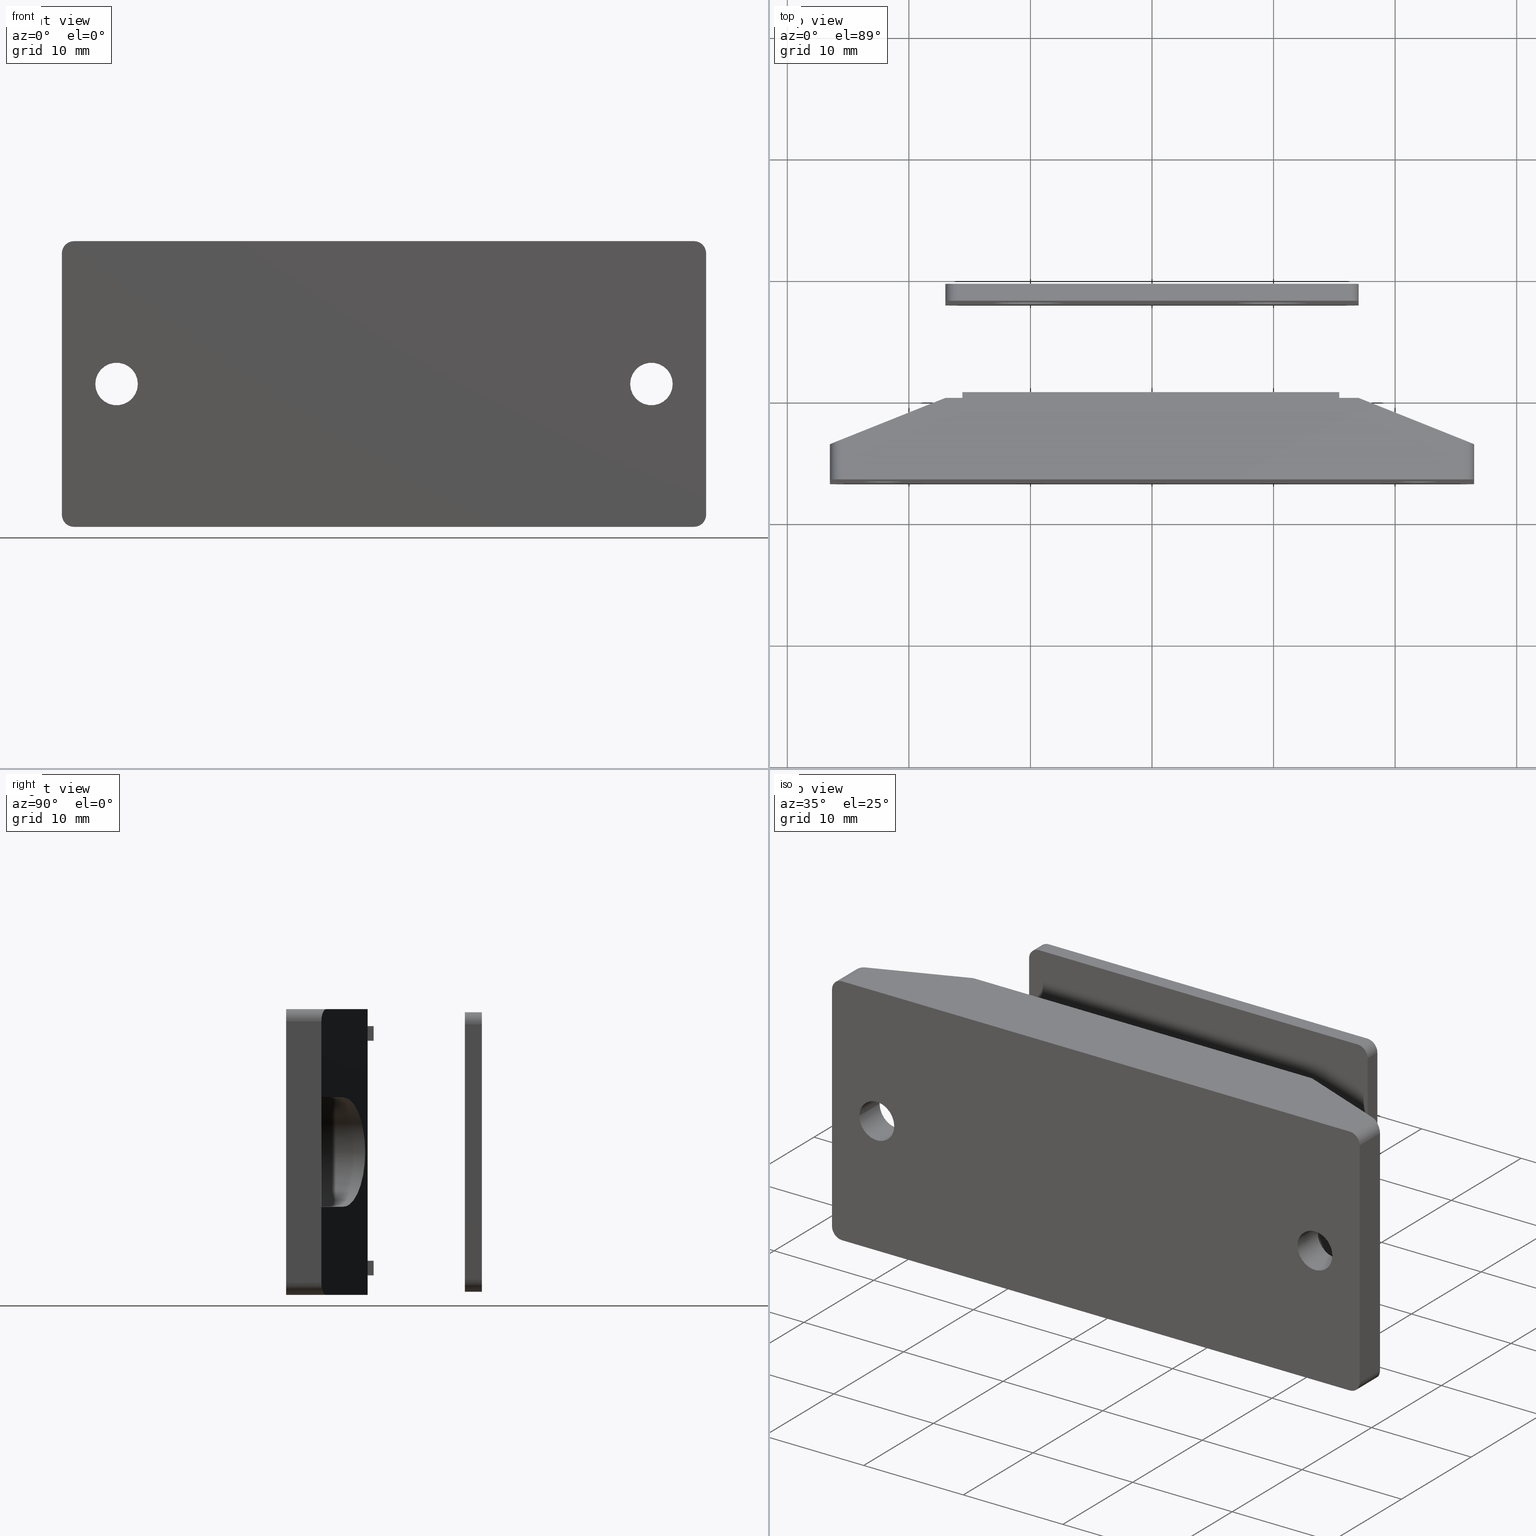
[diagram: canonical four-view strip — front | top / right | iso, engineering-drawing reading convention]
A machine part, canonical four-view strip (front | top / right | iso — engineering-drawing reading convention). The complete STEP part file that produces these views, byte-faithful:
ISO-10303-21;
HEADER;
/* Generated by software containing ST-Developer
 * from STEP Tools, Inc. (www.steptools.com) 
 */

FILE_DESCRIPTION(
/* description */ (''),
/* implementation_level */ '2;1');

FILE_NAME(
/* name */ '\\\\SYNOLOGYNAS\\web\\db2\\B-MP44\\CM-6244\\B-MP44.stp',
/* time_stamp */ '2024-09-25T18:57:37+09:00',
/* author */ ('user'),
/* organization */ (''),
/* preprocessor_version */ 'ST-DEVELOPER v15.6',
/* originating_system */ 'Autodesk Inventor 2015',
/* authorisation */ '');

FILE_SCHEMA (('AUTOMOTIVE_DESIGN { 1 0 10303 214 3 1 1 }'));
ENDSEC;

DATA;
#10=MECHANICAL_DESIGN_GEOMETRIC_PRESENTATION_REPRESENTATION('',(#34,#35,
#36,#37),#1711);
#11=ITEM_DEFINED_TRANSFORMATION($,$,#1028,#1120);
#12=ITEM_DEFINED_TRANSFORMATION($,$,#1077,#1121);
#13=ITEM_DEFINED_TRANSFORMATION($,$,#1106,#1122);
#14=(
REPRESENTATION_RELATIONSHIP($,$,#1726,#1729)
REPRESENTATION_RELATIONSHIP_WITH_TRANSFORMATION(#11)
SHAPE_REPRESENTATION_RELATIONSHIP()
);
#15=(
REPRESENTATION_RELATIONSHIP($,$,#1727,#1729)
REPRESENTATION_RELATIONSHIP_WITH_TRANSFORMATION(#12)
SHAPE_REPRESENTATION_RELATIONSHIP()
);
#16=(
REPRESENTATION_RELATIONSHIP($,$,#1728,#1729)
REPRESENTATION_RELATIONSHIP_WITH_TRANSFORMATION(#13)
SHAPE_REPRESENTATION_RELATIONSHIP()
);
#17=CONTEXT_DEPENDENT_SHAPE_REPRESENTATION(#14,#1723);
#18=CONTEXT_DEPENDENT_SHAPE_REPRESENTATION(#15,#1724);
#19=CONTEXT_DEPENDENT_SHAPE_REPRESENTATION(#16,#1725);
#20=NEXT_ASSEMBLY_USAGE_OCCURRENCE('\X2\BAB8D1B5\X0\:1',$,$,#1734,#1731,
$);
#21=NEXT_ASSEMBLY_USAGE_OCCURRENCE('\X2\C790C11DC544B370\X0\:1',$,$,#1734,
#1732,$);
#22=NEXT_ASSEMBLY_USAGE_OCCURRENCE('\X2\CCA0D310\X0\:1',$,$,#1734,#1733,
$);
#23=DIMENSIONAL_EXPONENTS(0.,0.,0.,0.,0.,0.,0.);
#24=(
CONVERSION_BASED_UNIT('degree',#25)
NAMED_UNIT(#23)
PLANE_ANGLE_UNIT()
);
#25=PLANE_ANGLE_MEASURE_WITH_UNIT(PLANE_ANGLE_MEASURE(0.01745329252),#1714);
#26=CONICAL_SURFACE('',#1095,2.5,0.785398163397448);
#27=CONICAL_SURFACE('',#1099,2.5,0.785398163397448);
#28=SHAPE_REPRESENTATION_RELATIONSHIP('SRR','None',#1726,#31);
#29=SHAPE_REPRESENTATION_RELATIONSHIP('SRR','None',#1727,#32);
#30=SHAPE_REPRESENTATION_RELATIONSHIP('SRR','None',#1728,#33);
#31=ADVANCED_BREP_SHAPE_REPRESENTATION($,(#38),#1707);
#32=ADVANCED_BREP_SHAPE_REPRESENTATION($,(#39),#1708);
#33=ADVANCED_BREP_SHAPE_REPRESENTATION($,(#40,#41),#1709);
#34=STYLED_ITEM('',(#1751),#38);
#35=STYLED_ITEM('',(#1752),#39);
#36=STYLED_ITEM('',(#1753),#40);
#37=STYLED_ITEM('',(#1753),#41);
#38=MANIFOLD_SOLID_BREP('\X2\BCF8CCB4\X0\1',#1024);
#39=MANIFOLD_SOLID_BREP('\X2\BCF8CCB4\X0\1',#1025);
#40=MANIFOLD_SOLID_BREP('\X2\BCF8CCB4\X0\1',#1026);
#41=MANIFOLD_SOLID_BREP('\X2\BCF8CCB4\X0\2',#1027);
#42=FACE_BOUND('',#161,.T.);
#43=FACE_BOUND('',#162,.T.);
#44=FACE_BOUND('',#170,.T.);
#45=FACE_BOUND('',#172,.T.);
#46=FACE_BOUND('',#174,.T.);
#47=FACE_BOUND('',#179,.T.);
#48=FACE_BOUND('',#196,.T.);
#49=FACE_BOUND('',#197,.T.);
#50=FACE_BOUND('',#201,.T.);
#51=FACE_BOUND('',#202,.T.);
#52=FACE_BOUND('',#208,.T.);
#53=FACE_BOUND('',#210,.T.);
#54=FACE_BOUND('',#212,.T.);
#55=FACE_BOUND('',#214,.T.);
#56=FACE_BOUND('',#218,.T.);
#57=FACE_BOUND('',#219,.T.);
#58=PLANE('',#1032);
#59=PLANE('',#1033);
#60=PLANE('',#1041);
#61=PLANE('',#1044);
#62=PLANE('',#1045);
#63=PLANE('',#1053);
#64=PLANE('',#1055);
#65=PLANE('',#1057);
#66=PLANE('',#1058);
#67=PLANE('',#1060);
#68=PLANE('',#1063);
#69=PLANE('',#1064);
#70=PLANE('',#1065);
#71=PLANE('',#1066);
#72=PLANE('',#1067);
#73=PLANE('',#1068);
#74=PLANE('',#1069);
#75=PLANE('',#1070);
#76=PLANE('',#1071);
#77=PLANE('',#1072);
#78=PLANE('',#1073);
#79=PLANE('',#1074);
#80=PLANE('',#1075);
#81=PLANE('',#1076);
#82=PLANE('',#1081);
#83=PLANE('',#1082);
#84=PLANE('',#1090);
#85=PLANE('',#1103);
#86=PLANE('',#1104);
#87=PLANE('',#1105);
#88=PLANE('',#1107);
#89=PLANE('',#1108);
#90=PLANE('',#1109);
#91=PLANE('',#1110);
#92=PLANE('',#1111);
#93=PLANE('',#1112);
#94=PLANE('',#1113);
#95=PLANE('',#1114);
#96=PLANE('',#1115);
#97=PLANE('',#1116);
#98=PLANE('',#1117);
#99=PLANE('',#1118);
#100=FACE_OUTER_BOUND('',#158,.T.);
#101=FACE_OUTER_BOUND('',#159,.T.);
#102=FACE_OUTER_BOUND('',#160,.T.);
#103=FACE_OUTER_BOUND('',#163,.T.);
#104=FACE_OUTER_BOUND('',#164,.T.);
#105=FACE_OUTER_BOUND('',#165,.T.);
#106=FACE_OUTER_BOUND('',#166,.T.);
#107=FACE_OUTER_BOUND('',#167,.T.);
#108=FACE_OUTER_BOUND('',#168,.T.);
#109=FACE_OUTER_BOUND('',#169,.T.);
#110=FACE_OUTER_BOUND('',#171,.T.);
#111=FACE_OUTER_BOUND('',#173,.T.);
#112=FACE_OUTER_BOUND('',#175,.T.);
#113=FACE_OUTER_BOUND('',#176,.T.);
#114=FACE_OUTER_BOUND('',#177,.T.);
#115=FACE_OUTER_BOUND('',#178,.T.);
#116=FACE_OUTER_BOUND('',#180,.T.);
#117=FACE_OUTER_BOUND('',#181,.T.);
#118=FACE_OUTER_BOUND('',#182,.T.);
#119=FACE_OUTER_BOUND('',#183,.T.);
#120=FACE_OUTER_BOUND('',#184,.T.);
#121=FACE_OUTER_BOUND('',#185,.T.);
#122=FACE_OUTER_BOUND('',#186,.T.);
#123=FACE_OUTER_BOUND('',#187,.T.);
#124=FACE_OUTER_BOUND('',#188,.T.);
#125=FACE_OUTER_BOUND('',#189,.T.);
#126=FACE_OUTER_BOUND('',#190,.T.);
#127=FACE_OUTER_BOUND('',#191,.T.);
#128=FACE_OUTER_BOUND('',#192,.T.);
#129=FACE_OUTER_BOUND('',#193,.T.);
#130=FACE_OUTER_BOUND('',#194,.T.);
#131=FACE_OUTER_BOUND('',#195,.T.);
#132=FACE_OUTER_BOUND('',#198,.T.);
#133=FACE_OUTER_BOUND('',#199,.T.);
#134=FACE_OUTER_BOUND('',#200,.T.);
#135=FACE_OUTER_BOUND('',#203,.T.);
#136=FACE_OUTER_BOUND('',#204,.T.);
#137=FACE_OUTER_BOUND('',#205,.T.);
#138=FACE_OUTER_BOUND('',#206,.T.);
#139=FACE_OUTER_BOUND('',#207,.T.);
#140=FACE_OUTER_BOUND('',#209,.T.);
#141=FACE_OUTER_BOUND('',#211,.T.);
#142=FACE_OUTER_BOUND('',#213,.T.);
#143=FACE_OUTER_BOUND('',#215,.T.);
#144=FACE_OUTER_BOUND('',#216,.T.);
#145=FACE_OUTER_BOUND('',#217,.T.);
#146=FACE_OUTER_BOUND('',#220,.T.);
#147=FACE_OUTER_BOUND('',#221,.T.);
#148=FACE_OUTER_BOUND('',#222,.T.);
#149=FACE_OUTER_BOUND('',#223,.T.);
#150=FACE_OUTER_BOUND('',#224,.T.);
#151=FACE_OUTER_BOUND('',#225,.T.);
#152=FACE_OUTER_BOUND('',#226,.T.);
#153=FACE_OUTER_BOUND('',#227,.T.);
#154=FACE_OUTER_BOUND('',#228,.T.);
#155=FACE_OUTER_BOUND('',#229,.T.);
#156=FACE_OUTER_BOUND('',#230,.T.);
#157=FACE_OUTER_BOUND('',#231,.T.);
#158=EDGE_LOOP('',(#688,#689,#690,#691));
#159=EDGE_LOOP('',(#692,#693,#694,#695,#696,#697));
#160=EDGE_LOOP('',(#698,#699,#700,#701,#702,#703,#704,#705));
#161=EDGE_LOOP('',(#706));
#162=EDGE_LOOP('',(#707));
#163=EDGE_LOOP('',(#708,#709,#710,#711));
#164=EDGE_LOOP('',(#712,#713,#714,#715,#716,#717));
#165=EDGE_LOOP('',(#718,#719,#720,#721));
#166=EDGE_LOOP('',(#722,#723,#724,#725,#726,#727));
#167=EDGE_LOOP('',(#728,#729,#730,#731,#732,#733,#734,#735,#736,#737));
#168=EDGE_LOOP('',(#738,#739,#740,#741));
#169=EDGE_LOOP('',(#742));
#170=EDGE_LOOP('',(#743));
#171=EDGE_LOOP('',(#744));
#172=EDGE_LOOP('',(#745));
#173=EDGE_LOOP('',(#746,#747,#748,#749));
#174=EDGE_LOOP('',(#750));
#175=EDGE_LOOP('',(#751,#752,#753));
#176=EDGE_LOOP('',(#754,#755,#756,#757));
#177=EDGE_LOOP('',(#758,#759,#760));
#178=EDGE_LOOP('',(#761,#762,#763,#764));
#179=EDGE_LOOP('',(#765));
#180=EDGE_LOOP('',(#766,#767,#768));
#181=EDGE_LOOP('',(#769,#770,#771,#772));
#182=EDGE_LOOP('',(#773,#774,#775));
#183=EDGE_LOOP('',(#776,#777,#778,#779));
#184=EDGE_LOOP('',(#780,#781,#782,#783));
#185=EDGE_LOOP('',(#784,#785,#786,#787));
#186=EDGE_LOOP('',(#788,#789,#790,#791));
#187=EDGE_LOOP('',(#792,#793,#794,#795));
#188=EDGE_LOOP('',(#796,#797,#798,#799));
#189=EDGE_LOOP('',(#800,#801,#802,#803));
#190=EDGE_LOOP('',(#804,#805,#806,#807));
#191=EDGE_LOOP('',(#808,#809,#810,#811));
#192=EDGE_LOOP('',(#812,#813,#814,#815));
#193=EDGE_LOOP('',(#816,#817,#818,#819,#820,#821));
#194=EDGE_LOOP('',(#822,#823,#824,#825,#826,#827,#828,#829,#830,#831));
#195=EDGE_LOOP('',(#832,#833,#834,#835));
#196=EDGE_LOOP('',(#836,#837,#838,#839));
#197=EDGE_LOOP('',(#840,#841,#842,#843));
#198=EDGE_LOOP('',(#844,#845,#846,#847));
#199=EDGE_LOOP('',(#848,#849,#850,#851));
#200=EDGE_LOOP('',(#852,#853,#854,#855,#856,#857,#858,#859));
#201=EDGE_LOOP('',(#860));
#202=EDGE_LOOP('',(#861));
#203=EDGE_LOOP('',(#862,#863,#864,#865));
#204=EDGE_LOOP('',(#866,#867,#868,#869));
#205=EDGE_LOOP('',(#870,#871,#872,#873));
#206=EDGE_LOOP('',(#874,#875,#876,#877));
#207=EDGE_LOOP('',(#878));
#208=EDGE_LOOP('',(#879));
#209=EDGE_LOOP('',(#880));
#210=EDGE_LOOP('',(#881));
#211=EDGE_LOOP('',(#882));
#212=EDGE_LOOP('',(#883));
#213=EDGE_LOOP('',(#884));
#214=EDGE_LOOP('',(#885));
#215=EDGE_LOOP('',(#886,#887,#888,#889));
#216=EDGE_LOOP('',(#890,#891,#892,#893));
#217=EDGE_LOOP('',(#894,#895,#896,#897,#898,#899,#900,#901));
#218=EDGE_LOOP('',(#902));
#219=EDGE_LOOP('',(#903));
#220=EDGE_LOOP('',(#904,#905,#906,#907));
#221=EDGE_LOOP('',(#908,#909,#910,#911));
#222=EDGE_LOOP('',(#912,#913,#914,#915));
#223=EDGE_LOOP('',(#916,#917,#918,#919));
#224=EDGE_LOOP('',(#920,#921,#922,#923));
#225=EDGE_LOOP('',(#924,#925,#926,#927));
#226=EDGE_LOOP('',(#928,#929,#930,#931));
#227=EDGE_LOOP('',(#932,#933,#934,#935));
#228=EDGE_LOOP('',(#936,#937,#938,#939));
#229=EDGE_LOOP('',(#940,#941,#942,#943));
#230=EDGE_LOOP('',(#944,#945,#946,#947));
#231=EDGE_LOOP('',(#948,#949,#950,#951));
#232=ELLIPSE('',#1031,1.0770329614269,1.);
#233=ELLIPSE('',#1040,1.0770329614269,1.);
#234=ELLIPSE('',#1043,1.0770329614269,1.);
#235=ELLIPSE('',#1046,1.0770329614269,1.);
#236=ELLIPSE('',#1047,4.84664832642105,4.5);
#237=ELLIPSE('',#1062,4.84664832642105,4.5);
#238=LINE('',#1421,#340);
#239=LINE('',#1424,#341);
#240=LINE('',#1427,#342);
#241=LINE('',#1429,#343);
#242=LINE('',#1431,#344);
#243=LINE('',#1433,#345);
#244=LINE('',#1434,#346);
#245=LINE('',#1437,#347);
#246=LINE('',#1441,#348);
#247=LINE('',#1445,#349);
#248=LINE('',#1455,#350);
#249=LINE('',#1456,#351);
#250=LINE('',#1459,#352);
#251=LINE('',#1461,#353);
#252=LINE('',#1463,#354);
#253=LINE('',#1464,#355);
#254=LINE('',#1468,#356);
#255=LINE('',#1471,#357);
#256=LINE('',#1473,#358);
#257=LINE('',#1475,#359);
#258=LINE('',#1476,#360);
#259=LINE('',#1478,#361);
#260=LINE('',#1481,#362);
#261=LINE('',#1484,#363);
#262=LINE('',#1494,#364);
#263=LINE('',#1497,#365);
#264=LINE('',#1499,#366);
#265=LINE('',#1501,#367);
#266=LINE('',#1506,#368);
#267=LINE('',#1508,#369);
#268=LINE('',#1511,#370);
#269=LINE('',#1514,#371);
#270=LINE('',#1515,#372);
#271=LINE('',#1519,#373);
#272=LINE('',#1521,#374);
#273=LINE('',#1525,#375);
#274=LINE('',#1527,#376);
#275=LINE('',#1529,#377);
#276=LINE('',#1530,#378);
#277=LINE('',#1533,#379);
#278=LINE('',#1535,#380);
#279=LINE('',#1536,#381);
#280=LINE('',#1539,#382);
#281=LINE('',#1541,#383);
#282=LINE('',#1542,#384);
#283=LINE('',#1544,#385);
#284=LINE('',#1545,#386);
#285=LINE('',#1550,#387);
#286=LINE('',#1552,#388);
#287=LINE('',#1554,#389);
#288=LINE('',#1555,#390);
#289=LINE('',#1558,#391);
#290=LINE('',#1560,#392);
#291=LINE('',#1561,#393);
#292=LINE('',#1564,#394);
#293=LINE('',#1566,#395);
#294=LINE('',#1567,#396);
#295=LINE('',#1569,#397);
#296=LINE('',#1570,#398);
#297=LINE('',#1573,#399);
#298=LINE('',#1574,#400);
#299=LINE('',#1576,#401);
#300=LINE('',#1584,#402);
#301=LINE('',#1587,#403);
#302=LINE('',#1590,#404);
#303=LINE('',#1592,#405);
#304=LINE('',#1593,#406);
#305=LINE('',#1596,#407);
#306=LINE('',#1600,#408);
#307=LINE('',#1604,#409);
#308=LINE('',#1614,#410);
#309=LINE('',#1615,#411);
#310=LINE('',#1618,#412);
#311=LINE('',#1619,#413);
#312=LINE('',#1623,#414);
#313=LINE('',#1627,#415);
#314=LINE('',#1641,#416);
#315=LINE('',#1643,#417);
#316=LINE('',#1649,#418);
#317=LINE('',#1651,#419);
#318=LINE('',#1653,#420);
#319=LINE('',#1654,#421);
#320=LINE('',#1657,#422);
#321=LINE('',#1659,#423);
#322=LINE('',#1660,#424);
#323=LINE('',#1663,#425);
#324=LINE('',#1665,#426);
#325=LINE('',#1666,#427);
#326=LINE('',#1668,#428);
#327=LINE('',#1669,#429);
#328=LINE('',#1675,#430);
#329=LINE('',#1677,#431);
#330=LINE('',#1679,#432);
#331=LINE('',#1680,#433);
#332=LINE('',#1683,#434);
#333=LINE('',#1685,#435);
#334=LINE('',#1686,#436);
#335=LINE('',#1689,#437);
#336=LINE('',#1691,#438);
#337=LINE('',#1692,#439);
#338=LINE('',#1694,#440);
#339=LINE('',#1695,#441);
#340=VECTOR('',#1129,3.3);
#341=VECTOR('',#1132,2.9);
#342=VECTOR('',#1135,51.);
#343=VECTOR('',#1136,3.3);
#344=VECTOR('',#1137,9.15478017212866);
#345=VECTOR('',#1138,34.);
#346=VECTOR('',#1139,9.15478017212866);
#347=VECTOR('',#1142,21.5);
#348=VECTOR('',#1145,51.);
#349=VECTOR('',#1148,21.5);
#350=VECTOR('',#1159,3.3);
#351=VECTOR('',#1160,2.9);
#352=VECTOR('',#1163,9.15478017212866);
#353=VECTOR('',#1164,34.);
#354=VECTOR('',#1165,9.15478017212866);
#355=VECTOR('',#1166,3.3);
#356=VECTOR('',#1171,2.9);
#357=VECTOR('',#1174,6.25);
#358=VECTOR('',#1175,9.);
#359=VECTOR('',#1176,6.25);
#360=VECTOR('',#1177,2.9);
#361=VECTOR('',#1180,23.5);
#362=VECTOR('',#1183,4.84664832642106);
#363=VECTOR('',#1186,4.84664832642106);
#364=VECTOR('',#1199,4.5);
#365=VECTOR('',#1202,4.5);
#366=VECTOR('',#1205,1.8);
#367=VECTOR('',#1208,1.8);
#368=VECTOR('',#1213,9.);
#369=VECTOR('',#1214,4.5);
#370=VECTOR('',#1217,4.5);
#371=VECTOR('',#1220,4.84664832642105);
#372=VECTOR('',#1221,1.8);
#373=VECTOR('',#1226,1.8);
#374=VECTOR('',#1229,4.84664832642106);
#375=VECTOR('',#1232,1.4);
#376=VECTOR('',#1233,4.4);
#377=VECTOR('',#1234,1.4);
#378=VECTOR('',#1235,4.4);
#379=VECTOR('',#1238,31.2);
#380=VECTOR('',#1239,31.2);
#381=VECTOR('',#1240,4.4);
#382=VECTOR('',#1243,1.4);
#383=VECTOR('',#1244,1.4);
#384=VECTOR('',#1245,4.4);
#385=VECTOR('',#1248,31.2);
#386=VECTOR('',#1249,31.2);
#387=VECTOR('',#1254,31.2);
#388=VECTOR('',#1255,4.4);
#389=VECTOR('',#1256,31.2);
#390=VECTOR('',#1257,4.4);
#391=VECTOR('',#1260,1.4);
#392=VECTOR('',#1261,1.4);
#393=VECTOR('',#1262,4.4);
#394=VECTOR('',#1265,31.2);
#395=VECTOR('',#1266,31.2);
#396=VECTOR('',#1267,4.4);
#397=VECTOR('',#1270,1.4);
#398=VECTOR('',#1271,1.4);
#399=VECTOR('',#1276,6.25);
#400=VECTOR('',#1277,6.25);
#401=VECTOR('',#1280,23.5);
#402=VECTOR('',#1289,1.4);
#403=VECTOR('',#1292,1.4);
#404=VECTOR('',#1295,32.);
#405=VECTOR('',#1296,1.4);
#406=VECTOR('',#1297,32.);
#407=VECTOR('',#1300,21.);
#408=VECTOR('',#1303,32.);
#409=VECTOR('',#1306,21.);
#410=VECTOR('',#1317,1.4);
#411=VECTOR('',#1318,1.4);
#412=VECTOR('',#1321,32.);
#413=VECTOR('',#1322,1.4);
#414=VECTOR('',#1327,1.4);
#415=VECTOR('',#1332,1.4);
#416=VECTOR('',#1351,21.);
#417=VECTOR('',#1354,21.);
#418=VECTOR('',#1361,31.);
#419=VECTOR('',#1362,5.);
#420=VECTOR('',#1363,31.);
#421=VECTOR('',#1364,5.);
#422=VECTOR('',#1367,1.2);
#423=VECTOR('',#1368,1.2);
#424=VECTOR('',#1369,5.);
#425=VECTOR('',#1372,31.);
#426=VECTOR('',#1373,31.);
#427=VECTOR('',#1374,5.);
#428=VECTOR('',#1377,1.2);
#429=VECTOR('',#1378,1.2);
#430=VECTOR('',#1385,31.);
#431=VECTOR('',#1386,5.);
#432=VECTOR('',#1387,31.);
#433=VECTOR('',#1388,5.);
#434=VECTOR('',#1391,1.2);
#435=VECTOR('',#1392,1.2);
#436=VECTOR('',#1393,5.);
#437=VECTOR('',#1396,31.);
#438=VECTOR('',#1397,31.);
#439=VECTOR('',#1398,5.);
#440=VECTOR('',#1401,1.2);
#441=VECTOR('',#1402,1.2);
#442=CIRCLE('',#1030,1.);
#443=CIRCLE('',#1034,1.);
#444=CIRCLE('',#1035,1.);
#445=CIRCLE('',#1036,1.);
#446=CIRCLE('',#1037,1.75);
#447=CIRCLE('',#1038,1.75);
#448=CIRCLE('',#1050,1.75);
#449=CIRCLE('',#1052,1.75);
#450=CIRCLE('',#1054,4.5);
#451=CIRCLE('',#1059,4.5);
#452=CIRCLE('',#1079,1.);
#453=CIRCLE('',#1080,1.);
#454=CIRCLE('',#1083,1.);
#455=CIRCLE('',#1084,1.);
#456=CIRCLE('',#1085,1.);
#457=CIRCLE('',#1086,2.);
#458=CIRCLE('',#1087,2.);
#459=CIRCLE('',#1089,1.);
#460=CIRCLE('',#1092,1.);
#461=CIRCLE('',#1094,1.);
#462=CIRCLE('',#1096,2.);
#463=CIRCLE('',#1097,3.);
#464=CIRCLE('',#1100,2.);
#465=CIRCLE('',#1101,3.);
#466=VERTEX_POINT('',#1417);
#467=VERTEX_POINT('',#1418);
#468=VERTEX_POINT('',#1420);
#469=VERTEX_POINT('',#1422);
#470=VERTEX_POINT('',#1426);
#471=VERTEX_POINT('',#1428);
#472=VERTEX_POINT('',#1430);
#473=VERTEX_POINT('',#1432);
#474=VERTEX_POINT('',#1436);
#475=VERTEX_POINT('',#1438);
#476=VERTEX_POINT('',#1440);
#477=VERTEX_POINT('',#1442);
#478=VERTEX_POINT('',#1444);
#479=VERTEX_POINT('',#1447);
#480=VERTEX_POINT('',#1449);
#481=VERTEX_POINT('',#1452);
#482=VERTEX_POINT('',#1453);
#483=VERTEX_POINT('',#1458);
#484=VERTEX_POINT('',#1460);
#485=VERTEX_POINT('',#1462);
#486=VERTEX_POINT('',#1466);
#487=VERTEX_POINT('',#1470);
#488=VERTEX_POINT('',#1472);
#489=VERTEX_POINT('',#1474);
#490=VERTEX_POINT('',#1480);
#491=VERTEX_POINT('',#1482);
#492=VERTEX_POINT('',#1487);
#493=VERTEX_POINT('',#1490);
#494=VERTEX_POINT('',#1493);
#495=VERTEX_POINT('',#1495);
#496=VERTEX_POINT('',#1504);
#497=VERTEX_POINT('',#1505);
#498=VERTEX_POINT('',#1507);
#499=VERTEX_POINT('',#1509);
#500=VERTEX_POINT('',#1513);
#501=VERTEX_POINT('',#1517);
#502=VERTEX_POINT('',#1523);
#503=VERTEX_POINT('',#1524);
#504=VERTEX_POINT('',#1526);
#505=VERTEX_POINT('',#1528);
#506=VERTEX_POINT('',#1532);
#507=VERTEX_POINT('',#1534);
#508=VERTEX_POINT('',#1538);
#509=VERTEX_POINT('',#1540);
#510=VERTEX_POINT('',#1548);
#511=VERTEX_POINT('',#1549);
#512=VERTEX_POINT('',#1551);
#513=VERTEX_POINT('',#1553);
#514=VERTEX_POINT('',#1557);
#515=VERTEX_POINT('',#1559);
#516=VERTEX_POINT('',#1563);
#517=VERTEX_POINT('',#1565);
#518=VERTEX_POINT('',#1580);
#519=VERTEX_POINT('',#1581);
#520=VERTEX_POINT('',#1583);
#521=VERTEX_POINT('',#1585);
#522=VERTEX_POINT('',#1589);
#523=VERTEX_POINT('',#1591);
#524=VERTEX_POINT('',#1595);
#525=VERTEX_POINT('',#1597);
#526=VERTEX_POINT('',#1599);
#527=VERTEX_POINT('',#1601);
#528=VERTEX_POINT('',#1603);
#529=VERTEX_POINT('',#1606);
#530=VERTEX_POINT('',#1608);
#531=VERTEX_POINT('',#1611);
#532=VERTEX_POINT('',#1612);
#533=VERTEX_POINT('',#1617);
#534=VERTEX_POINT('',#1621);
#535=VERTEX_POINT('',#1625);
#536=VERTEX_POINT('',#1629);
#537=VERTEX_POINT('',#1631);
#538=VERTEX_POINT('',#1635);
#539=VERTEX_POINT('',#1637);
#540=VERTEX_POINT('',#1647);
#541=VERTEX_POINT('',#1648);
#542=VERTEX_POINT('',#1650);
#543=VERTEX_POINT('',#1652);
#544=VERTEX_POINT('',#1656);
#545=VERTEX_POINT('',#1658);
#546=VERTEX_POINT('',#1662);
#547=VERTEX_POINT('',#1664);
#548=VERTEX_POINT('',#1673);
#549=VERTEX_POINT('',#1674);
#550=VERTEX_POINT('',#1676);
#551=VERTEX_POINT('',#1678);
#552=VERTEX_POINT('',#1682);
#553=VERTEX_POINT('',#1684);
#554=VERTEX_POINT('',#1688);
#555=VERTEX_POINT('',#1690);
#556=EDGE_CURVE('',#466,#467,#442,.T.);
#557=EDGE_CURVE('',#467,#468,#238,.T.);
#558=EDGE_CURVE('',#468,#469,#232,.T.);
#559=EDGE_CURVE('',#469,#466,#239,.T.);
#560=EDGE_CURVE('',#467,#470,#240,.T.);
#561=EDGE_CURVE('',#471,#470,#241,.T.);
#562=EDGE_CURVE('',#471,#472,#242,.T.);
#563=EDGE_CURVE('',#472,#473,#243,.T.);
#564=EDGE_CURVE('',#473,#468,#244,.T.);
#565=EDGE_CURVE('',#474,#466,#245,.T.);
#566=EDGE_CURVE('',#475,#474,#443,.T.);
#567=EDGE_CURVE('',#476,#475,#246,.T.);
#568=EDGE_CURVE('',#477,#476,#444,.T.);
#569=EDGE_CURVE('',#478,#477,#247,.T.);
#570=EDGE_CURVE('',#470,#478,#445,.T.);
#571=EDGE_CURVE('',#479,#479,#446,.T.);
#572=EDGE_CURVE('',#480,#480,#447,.T.);
#573=EDGE_CURVE('',#481,#482,#233,.T.);
#574=EDGE_CURVE('',#482,#475,#248,.T.);
#575=EDGE_CURVE('',#474,#481,#249,.T.);
#576=EDGE_CURVE('',#482,#483,#250,.T.);
#577=EDGE_CURVE('',#483,#484,#251,.T.);
#578=EDGE_CURVE('',#484,#485,#252,.T.);
#579=EDGE_CURVE('',#476,#485,#253,.T.);
#580=EDGE_CURVE('',#485,#486,#234,.T.);
#581=EDGE_CURVE('',#486,#477,#254,.T.);
#582=EDGE_CURVE('',#486,#487,#255,.T.);
#583=EDGE_CURVE('',#487,#488,#256,.T.);
#584=EDGE_CURVE('',#488,#489,#257,.T.);
#585=EDGE_CURVE('',#478,#489,#258,.T.);
#586=EDGE_CURVE('',#484,#472,#259,.T.);
#587=EDGE_CURVE('',#489,#471,#235,.T.);
#588=EDGE_CURVE('',#488,#490,#260,.T.);
#589=EDGE_CURVE('',#490,#491,#236,.T.);
#590=EDGE_CURVE('',#491,#487,#261,.T.);
#591=EDGE_CURVE('',#492,#492,#448,.T.);
#592=EDGE_CURVE('',#493,#493,#449,.T.);
#593=EDGE_CURVE('',#487,#494,#262,.T.);
#594=EDGE_CURVE('',#494,#495,#450,.T.);
#595=EDGE_CURVE('',#495,#488,#263,.T.);
#596=EDGE_CURVE('',#490,#495,#264,.T.);
#597=EDGE_CURVE('',#491,#494,#265,.T.);
#598=EDGE_CURVE('',#496,#497,#266,.T.);
#599=EDGE_CURVE('',#498,#497,#267,.T.);
#600=EDGE_CURVE('',#499,#498,#451,.T.);
#601=EDGE_CURVE('',#496,#499,#268,.T.);
#602=EDGE_CURVE('',#496,#500,#269,.T.);
#603=EDGE_CURVE('',#500,#499,#270,.T.);
#604=EDGE_CURVE('',#500,#501,#237,.T.);
#605=EDGE_CURVE('',#501,#498,#271,.T.);
#606=EDGE_CURVE('',#501,#497,#272,.T.);
#607=EDGE_CURVE('',#502,#503,#273,.T.);
#608=EDGE_CURVE('',#502,#504,#274,.T.);
#609=EDGE_CURVE('',#504,#505,#275,.T.);
#610=EDGE_CURVE('',#503,#505,#276,.T.);
#611=EDGE_CURVE('',#503,#506,#277,.T.);
#612=EDGE_CURVE('',#505,#507,#278,.T.);
#613=EDGE_CURVE('',#506,#507,#279,.T.);
#614=EDGE_CURVE('',#506,#508,#280,.T.);
#615=EDGE_CURVE('',#507,#509,#281,.T.);
#616=EDGE_CURVE('',#508,#509,#282,.T.);
#617=EDGE_CURVE('',#508,#502,#283,.T.);
#618=EDGE_CURVE('',#509,#504,#284,.T.);
#619=EDGE_CURVE('',#510,#511,#285,.T.);
#620=EDGE_CURVE('',#510,#512,#286,.T.);
#621=EDGE_CURVE('',#512,#513,#287,.T.);
#622=EDGE_CURVE('',#511,#513,#288,.T.);
#623=EDGE_CURVE('',#511,#514,#289,.T.);
#624=EDGE_CURVE('',#513,#515,#290,.T.);
#625=EDGE_CURVE('',#514,#515,#291,.T.);
#626=EDGE_CURVE('',#514,#516,#292,.T.);
#627=EDGE_CURVE('',#515,#517,#293,.T.);
#628=EDGE_CURVE('',#516,#517,#294,.T.);
#629=EDGE_CURVE('',#516,#510,#295,.T.);
#630=EDGE_CURVE('',#517,#512,#296,.T.);
#631=EDGE_CURVE('',#497,#469,#297,.T.);
#632=EDGE_CURVE('',#481,#496,#298,.T.);
#633=EDGE_CURVE('',#483,#473,#299,.T.);
#634=EDGE_CURVE('',#518,#519,#452,.T.);
#635=EDGE_CURVE('',#519,#520,#300,.T.);
#636=EDGE_CURVE('',#520,#521,#453,.T.);
#637=EDGE_CURVE('',#521,#518,#301,.T.);
#638=EDGE_CURVE('',#522,#521,#302,.T.);
#639=EDGE_CURVE('',#523,#522,#303,.T.);
#640=EDGE_CURVE('',#518,#523,#304,.T.);
#641=EDGE_CURVE('',#520,#524,#305,.T.);
#642=EDGE_CURVE('',#525,#524,#454,.T.);
#643=EDGE_CURVE('',#525,#526,#306,.T.);
#644=EDGE_CURVE('',#527,#526,#455,.T.);
#645=EDGE_CURVE('',#527,#528,#307,.T.);
#646=EDGE_CURVE('',#522,#528,#456,.T.);
#647=EDGE_CURVE('',#529,#529,#457,.T.);
#648=EDGE_CURVE('',#530,#530,#458,.T.);
#649=EDGE_CURVE('',#531,#532,#459,.T.);
#650=EDGE_CURVE('',#532,#525,#308,.T.);
#651=EDGE_CURVE('',#524,#531,#309,.T.);
#652=EDGE_CURVE('',#533,#532,#310,.T.);
#653=EDGE_CURVE('',#526,#533,#311,.T.);
#654=EDGE_CURVE('',#533,#534,#460,.T.);
#655=EDGE_CURVE('',#534,#527,#312,.T.);
#656=EDGE_CURVE('',#535,#523,#461,.T.);
#657=EDGE_CURVE('',#528,#535,#313,.T.);
#658=EDGE_CURVE('',#536,#536,#462,.T.);
#659=EDGE_CURVE('',#537,#537,#463,.T.);
#660=EDGE_CURVE('',#538,#538,#464,.T.);
#661=EDGE_CURVE('',#539,#539,#465,.T.);
#662=EDGE_CURVE('',#535,#534,#314,.T.);
#663=EDGE_CURVE('',#531,#519,#315,.T.);
#664=EDGE_CURVE('',#540,#541,#316,.T.);
#665=EDGE_CURVE('',#540,#542,#317,.T.);
#666=EDGE_CURVE('',#543,#542,#318,.T.);
#667=EDGE_CURVE('',#541,#543,#319,.T.);
#668=EDGE_CURVE('',#541,#544,#320,.T.);
#669=EDGE_CURVE('',#545,#543,#321,.T.);
#670=EDGE_CURVE('',#544,#545,#322,.T.);
#671=EDGE_CURVE('',#544,#546,#323,.T.);
#672=EDGE_CURVE('',#547,#545,#324,.T.);
#673=EDGE_CURVE('',#546,#547,#325,.T.);
#674=EDGE_CURVE('',#546,#540,#326,.T.);
#675=EDGE_CURVE('',#542,#547,#327,.T.);
#676=EDGE_CURVE('',#548,#549,#328,.T.);
#677=EDGE_CURVE('',#548,#550,#329,.T.);
#678=EDGE_CURVE('',#551,#550,#330,.T.);
#679=EDGE_CURVE('',#549,#551,#331,.T.);
#680=EDGE_CURVE('',#549,#552,#332,.T.);
#681=EDGE_CURVE('',#553,#551,#333,.T.);
#682=EDGE_CURVE('',#552,#553,#334,.T.);
#683=EDGE_CURVE('',#552,#554,#335,.T.);
#684=EDGE_CURVE('',#555,#553,#336,.T.);
#685=EDGE_CURVE('',#554,#555,#337,.T.);
#686=EDGE_CURVE('',#554,#548,#338,.T.);
#687=EDGE_CURVE('',#550,#555,#339,.T.);
#688=ORIENTED_EDGE('',*,*,#556,.T.);
#689=ORIENTED_EDGE('',*,*,#557,.T.);
#690=ORIENTED_EDGE('',*,*,#558,.T.);
#691=ORIENTED_EDGE('',*,*,#559,.T.);
#692=ORIENTED_EDGE('',*,*,#557,.F.);
#693=ORIENTED_EDGE('',*,*,#560,.T.);
#694=ORIENTED_EDGE('',*,*,#561,.F.);
#695=ORIENTED_EDGE('',*,*,#562,.T.);
#696=ORIENTED_EDGE('',*,*,#563,.T.);
#697=ORIENTED_EDGE('',*,*,#564,.T.);
#698=ORIENTED_EDGE('',*,*,#556,.F.);
#699=ORIENTED_EDGE('',*,*,#565,.F.);
#700=ORIENTED_EDGE('',*,*,#566,.F.);
#701=ORIENTED_EDGE('',*,*,#567,.F.);
#702=ORIENTED_EDGE('',*,*,#568,.F.);
#703=ORIENTED_EDGE('',*,*,#569,.F.);
#704=ORIENTED_EDGE('',*,*,#570,.F.);
#705=ORIENTED_EDGE('',*,*,#560,.F.);
#706=ORIENTED_EDGE('',*,*,#571,.T.);
#707=ORIENTED_EDGE('',*,*,#572,.T.);
#708=ORIENTED_EDGE('',*,*,#573,.T.);
#709=ORIENTED_EDGE('',*,*,#574,.T.);
#710=ORIENTED_EDGE('',*,*,#566,.T.);
#711=ORIENTED_EDGE('',*,*,#575,.T.);
#712=ORIENTED_EDGE('',*,*,#574,.F.);
#713=ORIENTED_EDGE('',*,*,#576,.T.);
#714=ORIENTED_EDGE('',*,*,#577,.T.);
#715=ORIENTED_EDGE('',*,*,#578,.T.);
#716=ORIENTED_EDGE('',*,*,#579,.F.);
#717=ORIENTED_EDGE('',*,*,#567,.T.);
#718=ORIENTED_EDGE('',*,*,#568,.T.);
#719=ORIENTED_EDGE('',*,*,#579,.T.);
#720=ORIENTED_EDGE('',*,*,#580,.T.);
#721=ORIENTED_EDGE('',*,*,#581,.T.);
#722=ORIENTED_EDGE('',*,*,#581,.F.);
#723=ORIENTED_EDGE('',*,*,#582,.T.);
#724=ORIENTED_EDGE('',*,*,#583,.T.);
#725=ORIENTED_EDGE('',*,*,#584,.T.);
#726=ORIENTED_EDGE('',*,*,#585,.F.);
#727=ORIENTED_EDGE('',*,*,#569,.T.);
#728=ORIENTED_EDGE('',*,*,#580,.F.);
#729=ORIENTED_EDGE('',*,*,#578,.F.);
#730=ORIENTED_EDGE('',*,*,#586,.T.);
#731=ORIENTED_EDGE('',*,*,#562,.F.);
#732=ORIENTED_EDGE('',*,*,#587,.F.);
#733=ORIENTED_EDGE('',*,*,#584,.F.);
#734=ORIENTED_EDGE('',*,*,#588,.T.);
#735=ORIENTED_EDGE('',*,*,#589,.T.);
#736=ORIENTED_EDGE('',*,*,#590,.T.);
#737=ORIENTED_EDGE('',*,*,#582,.F.);
#738=ORIENTED_EDGE('',*,*,#587,.T.);
#739=ORIENTED_EDGE('',*,*,#561,.T.);
#740=ORIENTED_EDGE('',*,*,#570,.T.);
#741=ORIENTED_EDGE('',*,*,#585,.T.);
#742=ORIENTED_EDGE('',*,*,#571,.F.);
#743=ORIENTED_EDGE('',*,*,#591,.F.);
#744=ORIENTED_EDGE('',*,*,#572,.F.);
#745=ORIENTED_EDGE('',*,*,#592,.F.);
#746=ORIENTED_EDGE('',*,*,#583,.F.);
#747=ORIENTED_EDGE('',*,*,#593,.T.);
#748=ORIENTED_EDGE('',*,*,#594,.T.);
#749=ORIENTED_EDGE('',*,*,#595,.T.);
#750=ORIENTED_EDGE('',*,*,#591,.T.);
#751=ORIENTED_EDGE('',*,*,#588,.F.);
#752=ORIENTED_EDGE('',*,*,#595,.F.);
#753=ORIENTED_EDGE('',*,*,#596,.F.);
#754=ORIENTED_EDGE('',*,*,#589,.F.);
#755=ORIENTED_EDGE('',*,*,#596,.T.);
#756=ORIENTED_EDGE('',*,*,#594,.F.);
#757=ORIENTED_EDGE('',*,*,#597,.F.);
#758=ORIENTED_EDGE('',*,*,#590,.F.);
#759=ORIENTED_EDGE('',*,*,#597,.T.);
#760=ORIENTED_EDGE('',*,*,#593,.F.);
#761=ORIENTED_EDGE('',*,*,#598,.T.);
#762=ORIENTED_EDGE('',*,*,#599,.F.);
#763=ORIENTED_EDGE('',*,*,#600,.F.);
#764=ORIENTED_EDGE('',*,*,#601,.F.);
#765=ORIENTED_EDGE('',*,*,#592,.T.);
#766=ORIENTED_EDGE('',*,*,#602,.F.);
#767=ORIENTED_EDGE('',*,*,#601,.T.);
#768=ORIENTED_EDGE('',*,*,#603,.F.);
#769=ORIENTED_EDGE('',*,*,#604,.F.);
#770=ORIENTED_EDGE('',*,*,#603,.T.);
#771=ORIENTED_EDGE('',*,*,#600,.T.);
#772=ORIENTED_EDGE('',*,*,#605,.F.);
#773=ORIENTED_EDGE('',*,*,#606,.F.);
#774=ORIENTED_EDGE('',*,*,#605,.T.);
#775=ORIENTED_EDGE('',*,*,#599,.T.);
#776=ORIENTED_EDGE('',*,*,#607,.F.);
#777=ORIENTED_EDGE('',*,*,#608,.T.);
#778=ORIENTED_EDGE('',*,*,#609,.T.);
#779=ORIENTED_EDGE('',*,*,#610,.F.);
#780=ORIENTED_EDGE('',*,*,#611,.F.);
#781=ORIENTED_EDGE('',*,*,#610,.T.);
#782=ORIENTED_EDGE('',*,*,#612,.T.);
#783=ORIENTED_EDGE('',*,*,#613,.F.);
#784=ORIENTED_EDGE('',*,*,#614,.F.);
#785=ORIENTED_EDGE('',*,*,#613,.T.);
#786=ORIENTED_EDGE('',*,*,#615,.T.);
#787=ORIENTED_EDGE('',*,*,#616,.F.);
#788=ORIENTED_EDGE('',*,*,#617,.F.);
#789=ORIENTED_EDGE('',*,*,#616,.T.);
#790=ORIENTED_EDGE('',*,*,#618,.T.);
#791=ORIENTED_EDGE('',*,*,#608,.F.);
#792=ORIENTED_EDGE('',*,*,#618,.F.);
#793=ORIENTED_EDGE('',*,*,#615,.F.);
#794=ORIENTED_EDGE('',*,*,#612,.F.);
#795=ORIENTED_EDGE('',*,*,#609,.F.);
#796=ORIENTED_EDGE('',*,*,#619,.F.);
#797=ORIENTED_EDGE('',*,*,#620,.T.);
#798=ORIENTED_EDGE('',*,*,#621,.T.);
#799=ORIENTED_EDGE('',*,*,#622,.F.);
#800=ORIENTED_EDGE('',*,*,#623,.F.);
#801=ORIENTED_EDGE('',*,*,#622,.T.);
#802=ORIENTED_EDGE('',*,*,#624,.T.);
#803=ORIENTED_EDGE('',*,*,#625,.F.);
#804=ORIENTED_EDGE('',*,*,#626,.F.);
#805=ORIENTED_EDGE('',*,*,#625,.T.);
#806=ORIENTED_EDGE('',*,*,#627,.T.);
#807=ORIENTED_EDGE('',*,*,#628,.F.);
#808=ORIENTED_EDGE('',*,*,#629,.F.);
#809=ORIENTED_EDGE('',*,*,#628,.T.);
#810=ORIENTED_EDGE('',*,*,#630,.T.);
#811=ORIENTED_EDGE('',*,*,#620,.F.);
#812=ORIENTED_EDGE('',*,*,#630,.F.);
#813=ORIENTED_EDGE('',*,*,#627,.F.);
#814=ORIENTED_EDGE('',*,*,#624,.F.);
#815=ORIENTED_EDGE('',*,*,#621,.F.);
#816=ORIENTED_EDGE('',*,*,#559,.F.);
#817=ORIENTED_EDGE('',*,*,#631,.F.);
#818=ORIENTED_EDGE('',*,*,#598,.F.);
#819=ORIENTED_EDGE('',*,*,#632,.F.);
#820=ORIENTED_EDGE('',*,*,#575,.F.);
#821=ORIENTED_EDGE('',*,*,#565,.T.);
#822=ORIENTED_EDGE('',*,*,#558,.F.);
#823=ORIENTED_EDGE('',*,*,#564,.F.);
#824=ORIENTED_EDGE('',*,*,#633,.F.);
#825=ORIENTED_EDGE('',*,*,#576,.F.);
#826=ORIENTED_EDGE('',*,*,#573,.F.);
#827=ORIENTED_EDGE('',*,*,#632,.T.);
#828=ORIENTED_EDGE('',*,*,#602,.T.);
#829=ORIENTED_EDGE('',*,*,#604,.T.);
#830=ORIENTED_EDGE('',*,*,#606,.T.);
#831=ORIENTED_EDGE('',*,*,#631,.T.);
#832=ORIENTED_EDGE('',*,*,#633,.T.);
#833=ORIENTED_EDGE('',*,*,#563,.F.);
#834=ORIENTED_EDGE('',*,*,#586,.F.);
#835=ORIENTED_EDGE('',*,*,#577,.F.);
#836=ORIENTED_EDGE('',*,*,#614,.T.);
#837=ORIENTED_EDGE('',*,*,#617,.T.);
#838=ORIENTED_EDGE('',*,*,#607,.T.);
#839=ORIENTED_EDGE('',*,*,#611,.T.);
#840=ORIENTED_EDGE('',*,*,#626,.T.);
#841=ORIENTED_EDGE('',*,*,#629,.T.);
#842=ORIENTED_EDGE('',*,*,#619,.T.);
#843=ORIENTED_EDGE('',*,*,#623,.T.);
#844=ORIENTED_EDGE('',*,*,#634,.T.);
#845=ORIENTED_EDGE('',*,*,#635,.T.);
#846=ORIENTED_EDGE('',*,*,#636,.T.);
#847=ORIENTED_EDGE('',*,*,#637,.T.);
#848=ORIENTED_EDGE('',*,*,#637,.F.);
#849=ORIENTED_EDGE('',*,*,#638,.F.);
#850=ORIENTED_EDGE('',*,*,#639,.F.);
#851=ORIENTED_EDGE('',*,*,#640,.F.);
#852=ORIENTED_EDGE('',*,*,#636,.F.);
#853=ORIENTED_EDGE('',*,*,#641,.T.);
#854=ORIENTED_EDGE('',*,*,#642,.F.);
#855=ORIENTED_EDGE('',*,*,#643,.T.);
#856=ORIENTED_EDGE('',*,*,#644,.F.);
#857=ORIENTED_EDGE('',*,*,#645,.T.);
#858=ORIENTED_EDGE('',*,*,#646,.F.);
#859=ORIENTED_EDGE('',*,*,#638,.T.);
#860=ORIENTED_EDGE('',*,*,#647,.T.);
#861=ORIENTED_EDGE('',*,*,#648,.T.);
#862=ORIENTED_EDGE('',*,*,#649,.T.);
#863=ORIENTED_EDGE('',*,*,#650,.T.);
#864=ORIENTED_EDGE('',*,*,#642,.T.);
#865=ORIENTED_EDGE('',*,*,#651,.T.);
#866=ORIENTED_EDGE('',*,*,#650,.F.);
#867=ORIENTED_EDGE('',*,*,#652,.F.);
#868=ORIENTED_EDGE('',*,*,#653,.F.);
#869=ORIENTED_EDGE('',*,*,#643,.F.);
#870=ORIENTED_EDGE('',*,*,#654,.T.);
#871=ORIENTED_EDGE('',*,*,#655,.T.);
#872=ORIENTED_EDGE('',*,*,#644,.T.);
#873=ORIENTED_EDGE('',*,*,#653,.T.);
#874=ORIENTED_EDGE('',*,*,#656,.T.);
#875=ORIENTED_EDGE('',*,*,#639,.T.);
#876=ORIENTED_EDGE('',*,*,#646,.T.);
#877=ORIENTED_EDGE('',*,*,#657,.T.);
#878=ORIENTED_EDGE('',*,*,#658,.T.);
#879=ORIENTED_EDGE('',*,*,#659,.F.);
#880=ORIENTED_EDGE('',*,*,#647,.F.);
#881=ORIENTED_EDGE('',*,*,#658,.F.);
#882=ORIENTED_EDGE('',*,*,#660,.T.);
#883=ORIENTED_EDGE('',*,*,#661,.F.);
#884=ORIENTED_EDGE('',*,*,#648,.F.);
#885=ORIENTED_EDGE('',*,*,#660,.F.);
#886=ORIENTED_EDGE('',*,*,#655,.F.);
#887=ORIENTED_EDGE('',*,*,#662,.F.);
#888=ORIENTED_EDGE('',*,*,#657,.F.);
#889=ORIENTED_EDGE('',*,*,#645,.F.);
#890=ORIENTED_EDGE('',*,*,#635,.F.);
#891=ORIENTED_EDGE('',*,*,#663,.F.);
#892=ORIENTED_EDGE('',*,*,#651,.F.);
#893=ORIENTED_EDGE('',*,*,#641,.F.);
#894=ORIENTED_EDGE('',*,*,#634,.F.);
#895=ORIENTED_EDGE('',*,*,#640,.T.);
#896=ORIENTED_EDGE('',*,*,#656,.F.);
#897=ORIENTED_EDGE('',*,*,#662,.T.);
#898=ORIENTED_EDGE('',*,*,#654,.F.);
#899=ORIENTED_EDGE('',*,*,#652,.T.);
#900=ORIENTED_EDGE('',*,*,#649,.F.);
#901=ORIENTED_EDGE('',*,*,#663,.T.);
#902=ORIENTED_EDGE('',*,*,#659,.T.);
#903=ORIENTED_EDGE('',*,*,#661,.T.);
#904=ORIENTED_EDGE('',*,*,#664,.F.);
#905=ORIENTED_EDGE('',*,*,#665,.T.);
#906=ORIENTED_EDGE('',*,*,#666,.F.);
#907=ORIENTED_EDGE('',*,*,#667,.F.);
#908=ORIENTED_EDGE('',*,*,#668,.F.);
#909=ORIENTED_EDGE('',*,*,#667,.T.);
#910=ORIENTED_EDGE('',*,*,#669,.F.);
#911=ORIENTED_EDGE('',*,*,#670,.F.);
#912=ORIENTED_EDGE('',*,*,#671,.F.);
#913=ORIENTED_EDGE('',*,*,#670,.T.);
#914=ORIENTED_EDGE('',*,*,#672,.F.);
#915=ORIENTED_EDGE('',*,*,#673,.F.);
#916=ORIENTED_EDGE('',*,*,#674,.F.);
#917=ORIENTED_EDGE('',*,*,#673,.T.);
#918=ORIENTED_EDGE('',*,*,#675,.F.);
#919=ORIENTED_EDGE('',*,*,#665,.F.);
#920=ORIENTED_EDGE('',*,*,#674,.T.);
#921=ORIENTED_EDGE('',*,*,#664,.T.);
#922=ORIENTED_EDGE('',*,*,#668,.T.);
#923=ORIENTED_EDGE('',*,*,#671,.T.);
#924=ORIENTED_EDGE('',*,*,#675,.T.);
#925=ORIENTED_EDGE('',*,*,#672,.T.);
#926=ORIENTED_EDGE('',*,*,#669,.T.);
#927=ORIENTED_EDGE('',*,*,#666,.T.);
#928=ORIENTED_EDGE('',*,*,#676,.F.);
#929=ORIENTED_EDGE('',*,*,#677,.T.);
#930=ORIENTED_EDGE('',*,*,#678,.F.);
#931=ORIENTED_EDGE('',*,*,#679,.F.);
#932=ORIENTED_EDGE('',*,*,#680,.F.);
#933=ORIENTED_EDGE('',*,*,#679,.T.);
#934=ORIENTED_EDGE('',*,*,#681,.F.);
#935=ORIENTED_EDGE('',*,*,#682,.F.);
#936=ORIENTED_EDGE('',*,*,#683,.F.);
#937=ORIENTED_EDGE('',*,*,#682,.T.);
#938=ORIENTED_EDGE('',*,*,#684,.F.);
#939=ORIENTED_EDGE('',*,*,#685,.F.);
#940=ORIENTED_EDGE('',*,*,#686,.F.);
#941=ORIENTED_EDGE('',*,*,#685,.T.);
#942=ORIENTED_EDGE('',*,*,#687,.F.);
#943=ORIENTED_EDGE('',*,*,#677,.F.);
#944=ORIENTED_EDGE('',*,*,#686,.T.);
#945=ORIENTED_EDGE('',*,*,#676,.T.);
#946=ORIENTED_EDGE('',*,*,#680,.T.);
#947=ORIENTED_EDGE('',*,*,#683,.T.);
#948=ORIENTED_EDGE('',*,*,#687,.T.);
#949=ORIENTED_EDGE('',*,*,#684,.T.);
#950=ORIENTED_EDGE('',*,*,#681,.T.);
#951=ORIENTED_EDGE('',*,*,#678,.T.);
#952=CYLINDRICAL_SURFACE('',#1029,1.);
#953=CYLINDRICAL_SURFACE('',#1039,1.);
#954=CYLINDRICAL_SURFACE('',#1042,1.);
#955=CYLINDRICAL_SURFACE('',#1048,1.);
#956=CYLINDRICAL_SURFACE('',#1049,1.75);
#957=CYLINDRICAL_SURFACE('',#1051,1.75);
#958=CYLINDRICAL_SURFACE('',#1056,4.5);
#959=CYLINDRICAL_SURFACE('',#1061,4.5);
#960=CYLINDRICAL_SURFACE('',#1078,1.);
#961=CYLINDRICAL_SURFACE('',#1088,1.);
#962=CYLINDRICAL_SURFACE('',#1091,1.);
#963=CYLINDRICAL_SURFACE('',#1093,1.);
#964=CYLINDRICAL_SURFACE('',#1098,2.);
#965=CYLINDRICAL_SURFACE('',#1102,2.);
#966=ADVANCED_FACE('',(#100),#952,.T.);
#967=ADVANCED_FACE('',(#101),#58,.T.);
#968=ADVANCED_FACE('',(#102,#42,#43),#59,.T.);
#969=ADVANCED_FACE('',(#103),#953,.T.);
#970=ADVANCED_FACE('',(#104),#60,.T.);
#971=ADVANCED_FACE('',(#105),#954,.T.);
#972=ADVANCED_FACE('',(#106),#61,.T.);
#973=ADVANCED_FACE('',(#107),#62,.T.);
#974=ADVANCED_FACE('',(#108),#955,.T.);
#975=ADVANCED_FACE('',(#109,#44),#956,.F.);
#976=ADVANCED_FACE('',(#110,#45),#957,.F.);
#977=ADVANCED_FACE('',(#111,#46),#63,.F.);
#978=ADVANCED_FACE('',(#112),#64,.T.);
#979=ADVANCED_FACE('',(#113),#958,.F.);
#980=ADVANCED_FACE('',(#114),#65,.T.);
#981=ADVANCED_FACE('',(#115,#47),#66,.T.);
#982=ADVANCED_FACE('',(#116),#67,.F.);
#983=ADVANCED_FACE('',(#117),#959,.F.);
#984=ADVANCED_FACE('',(#118),#68,.F.);
#985=ADVANCED_FACE('',(#119),#69,.F.);
#986=ADVANCED_FACE('',(#120),#70,.F.);
#987=ADVANCED_FACE('',(#121),#71,.F.);
#988=ADVANCED_FACE('',(#122),#72,.F.);
#989=ADVANCED_FACE('',(#123),#73,.F.);
#990=ADVANCED_FACE('',(#124),#74,.F.);
#991=ADVANCED_FACE('',(#125),#75,.F.);
#992=ADVANCED_FACE('',(#126),#76,.F.);
#993=ADVANCED_FACE('',(#127),#77,.F.);
#994=ADVANCED_FACE('',(#128),#78,.F.);
#995=ADVANCED_FACE('',(#129),#79,.T.);
#996=ADVANCED_FACE('',(#130),#80,.T.);
#997=ADVANCED_FACE('',(#131,#48,#49),#81,.T.);
#998=ADVANCED_FACE('',(#132),#960,.T.);
#999=ADVANCED_FACE('',(#133),#82,.T.);
#1000=ADVANCED_FACE('',(#134,#50,#51),#83,.F.);
#1001=ADVANCED_FACE('',(#135),#961,.T.);
#1002=ADVANCED_FACE('',(#136),#84,.T.);
#1003=ADVANCED_FACE('',(#137),#962,.T.);
#1004=ADVANCED_FACE('',(#138),#963,.T.);
#1005=ADVANCED_FACE('',(#139,#52),#26,.F.);
#1006=ADVANCED_FACE('',(#140,#53),#964,.F.);
#1007=ADVANCED_FACE('',(#141,#54),#27,.F.);
#1008=ADVANCED_FACE('',(#142,#55),#965,.F.);
#1009=ADVANCED_FACE('',(#143),#85,.T.);
#1010=ADVANCED_FACE('',(#144),#86,.T.);
#1011=ADVANCED_FACE('',(#145,#56,#57),#87,.T.);
#1012=ADVANCED_FACE('',(#146),#88,.T.);
#1013=ADVANCED_FACE('',(#147),#89,.T.);
#1014=ADVANCED_FACE('',(#148),#90,.T.);
#1015=ADVANCED_FACE('',(#149),#91,.T.);
#1016=ADVANCED_FACE('',(#150),#92,.T.);
#1017=ADVANCED_FACE('',(#151),#93,.T.);
#1018=ADVANCED_FACE('',(#152),#94,.T.);
#1019=ADVANCED_FACE('',(#153),#95,.T.);
#1020=ADVANCED_FACE('',(#154),#96,.T.);
#1021=ADVANCED_FACE('',(#155),#97,.T.);
#1022=ADVANCED_FACE('',(#156),#98,.T.);
#1023=ADVANCED_FACE('',(#157),#99,.T.);
#1024=CLOSED_SHELL('',(#966,#967,#968,#969,#970,#971,#972,#973,#974,#975,
#976,#977,#978,#979,#980,#981,#982,#983,#984,#985,#986,#987,#988,#989,#990,
#991,#992,#993,#994,#995,#996,#997));
#1025=CLOSED_SHELL('',(#998,#999,#1000,#1001,#1002,#1003,#1004,#1005,#1006,
#1007,#1008,#1009,#1010,#1011));
#1026=CLOSED_SHELL('',(#1012,#1013,#1014,#1015,#1016,#1017));
#1027=CLOSED_SHELL('',(#1018,#1019,#1020,#1021,#1022,#1023));
#1028=AXIS2_PLACEMENT_3D('placement',#1415,#1123,#1124);
#1029=AXIS2_PLACEMENT_3D('',#1416,#1125,#1126);
#1030=AXIS2_PLACEMENT_3D('',#1419,#1127,#1128);
#1031=AXIS2_PLACEMENT_3D('',#1423,#1130,#1131);
#1032=AXIS2_PLACEMENT_3D('',#1425,#1133,#1134);
#1033=AXIS2_PLACEMENT_3D('',#1435,#1140,#1141);
#1034=AXIS2_PLACEMENT_3D('',#1439,#1143,#1144);
#1035=AXIS2_PLACEMENT_3D('',#1443,#1146,#1147);
#1036=AXIS2_PLACEMENT_3D('',#1446,#1149,#1150);
#1037=AXIS2_PLACEMENT_3D('',#1448,#1151,#1152);
#1038=AXIS2_PLACEMENT_3D('',#1450,#1153,#1154);
#1039=AXIS2_PLACEMENT_3D('',#1451,#1155,#1156);
#1040=AXIS2_PLACEMENT_3D('',#1454,#1157,#1158);
#1041=AXIS2_PLACEMENT_3D('',#1457,#1161,#1162);
#1042=AXIS2_PLACEMENT_3D('',#1465,#1167,#1168);
#1043=AXIS2_PLACEMENT_3D('',#1467,#1169,#1170);
#1044=AXIS2_PLACEMENT_3D('',#1469,#1172,#1173);
#1045=AXIS2_PLACEMENT_3D('',#1477,#1178,#1179);
#1046=AXIS2_PLACEMENT_3D('',#1479,#1181,#1182);
#1047=AXIS2_PLACEMENT_3D('',#1483,#1184,#1185);
#1048=AXIS2_PLACEMENT_3D('',#1485,#1187,#1188);
#1049=AXIS2_PLACEMENT_3D('',#1486,#1189,#1190);
#1050=AXIS2_PLACEMENT_3D('',#1488,#1191,#1192);
#1051=AXIS2_PLACEMENT_3D('',#1489,#1193,#1194);
#1052=AXIS2_PLACEMENT_3D('',#1491,#1195,#1196);
#1053=AXIS2_PLACEMENT_3D('',#1492,#1197,#1198);
#1054=AXIS2_PLACEMENT_3D('',#1496,#1200,#1201);
#1055=AXIS2_PLACEMENT_3D('',#1498,#1203,#1204);
#1056=AXIS2_PLACEMENT_3D('',#1500,#1206,#1207);
#1057=AXIS2_PLACEMENT_3D('',#1502,#1209,#1210);
#1058=AXIS2_PLACEMENT_3D('',#1503,#1211,#1212);
#1059=AXIS2_PLACEMENT_3D('',#1510,#1215,#1216);
#1060=AXIS2_PLACEMENT_3D('',#1512,#1218,#1219);
#1061=AXIS2_PLACEMENT_3D('',#1516,#1222,#1223);
#1062=AXIS2_PLACEMENT_3D('',#1518,#1224,#1225);
#1063=AXIS2_PLACEMENT_3D('',#1520,#1227,#1228);
#1064=AXIS2_PLACEMENT_3D('',#1522,#1230,#1231);
#1065=AXIS2_PLACEMENT_3D('',#1531,#1236,#1237);
#1066=AXIS2_PLACEMENT_3D('',#1537,#1241,#1242);
#1067=AXIS2_PLACEMENT_3D('',#1543,#1246,#1247);
#1068=AXIS2_PLACEMENT_3D('',#1546,#1250,#1251);
#1069=AXIS2_PLACEMENT_3D('',#1547,#1252,#1253);
#1070=AXIS2_PLACEMENT_3D('',#1556,#1258,#1259);
#1071=AXIS2_PLACEMENT_3D('',#1562,#1263,#1264);
#1072=AXIS2_PLACEMENT_3D('',#1568,#1268,#1269);
#1073=AXIS2_PLACEMENT_3D('',#1571,#1272,#1273);
#1074=AXIS2_PLACEMENT_3D('',#1572,#1274,#1275);
#1075=AXIS2_PLACEMENT_3D('',#1575,#1278,#1279);
#1076=AXIS2_PLACEMENT_3D('',#1577,#1281,#1282);
#1077=AXIS2_PLACEMENT_3D('placement',#1578,#1283,#1284);
#1078=AXIS2_PLACEMENT_3D('',#1579,#1285,#1286);
#1079=AXIS2_PLACEMENT_3D('',#1582,#1287,#1288);
#1080=AXIS2_PLACEMENT_3D('',#1586,#1290,#1291);
#1081=AXIS2_PLACEMENT_3D('',#1588,#1293,#1294);
#1082=AXIS2_PLACEMENT_3D('',#1594,#1298,#1299);
#1083=AXIS2_PLACEMENT_3D('',#1598,#1301,#1302);
#1084=AXIS2_PLACEMENT_3D('',#1602,#1304,#1305);
#1085=AXIS2_PLACEMENT_3D('',#1605,#1307,#1308);
#1086=AXIS2_PLACEMENT_3D('',#1607,#1309,#1310);
#1087=AXIS2_PLACEMENT_3D('',#1609,#1311,#1312);
#1088=AXIS2_PLACEMENT_3D('',#1610,#1313,#1314);
#1089=AXIS2_PLACEMENT_3D('',#1613,#1315,#1316);
#1090=AXIS2_PLACEMENT_3D('',#1616,#1319,#1320);
#1091=AXIS2_PLACEMENT_3D('',#1620,#1323,#1324);
#1092=AXIS2_PLACEMENT_3D('',#1622,#1325,#1326);
#1093=AXIS2_PLACEMENT_3D('',#1624,#1328,#1329);
#1094=AXIS2_PLACEMENT_3D('',#1626,#1330,#1331);
#1095=AXIS2_PLACEMENT_3D('',#1628,#1333,#1334);
#1096=AXIS2_PLACEMENT_3D('',#1630,#1335,#1336);
#1097=AXIS2_PLACEMENT_3D('',#1632,#1337,#1338);
#1098=AXIS2_PLACEMENT_3D('',#1633,#1339,#1340);
#1099=AXIS2_PLACEMENT_3D('',#1634,#1341,#1342);
#1100=AXIS2_PLACEMENT_3D('',#1636,#1343,#1344);
#1101=AXIS2_PLACEMENT_3D('',#1638,#1345,#1346);
#1102=AXIS2_PLACEMENT_3D('',#1639,#1347,#1348);
#1103=AXIS2_PLACEMENT_3D('',#1640,#1349,#1350);
#1104=AXIS2_PLACEMENT_3D('',#1642,#1352,#1353);
#1105=AXIS2_PLACEMENT_3D('',#1644,#1355,#1356);
#1106=AXIS2_PLACEMENT_3D('placement',#1645,#1357,#1358);
#1107=AXIS2_PLACEMENT_3D('',#1646,#1359,#1360);
#1108=AXIS2_PLACEMENT_3D('',#1655,#1365,#1366);
#1109=AXIS2_PLACEMENT_3D('',#1661,#1370,#1371);
#1110=AXIS2_PLACEMENT_3D('',#1667,#1375,#1376);
#1111=AXIS2_PLACEMENT_3D('',#1670,#1379,#1380);
#1112=AXIS2_PLACEMENT_3D('',#1671,#1381,#1382);
#1113=AXIS2_PLACEMENT_3D('',#1672,#1383,#1384);
#1114=AXIS2_PLACEMENT_3D('',#1681,#1389,#1390);
#1115=AXIS2_PLACEMENT_3D('',#1687,#1394,#1395);
#1116=AXIS2_PLACEMENT_3D('',#1693,#1399,#1400);
#1117=AXIS2_PLACEMENT_3D('',#1696,#1403,#1404);
#1118=AXIS2_PLACEMENT_3D('',#1697,#1405,#1406);
#1119=AXIS2_PLACEMENT_3D('placement',#1698,#1407,#1408);
#1120=AXIS2_PLACEMENT_3D('',#1699,#1409,#1410);
#1121=AXIS2_PLACEMENT_3D('',#1700,#1411,#1412);
#1122=AXIS2_PLACEMENT_3D('',#1701,#1413,#1414);
#1123=DIRECTION('axis',(0.,0.,1.));
#1124=DIRECTION('refdir',(1.,0.,0.));
#1125=DIRECTION('center_axis',(0.,0.,-1.));
#1126=DIRECTION('ref_axis',(0.707106781186549,0.707106781186546,0.));
#1127=DIRECTION('center_axis',(0.,0.,1.));
#1128=DIRECTION('ref_axis',(0.707106781186549,0.707106781186546,0.));
#1129=DIRECTION('',(0.,0.,1.));
#1130=DIRECTION('center_axis',(-0.371390676354104,0.,-0.928476690885259));
#1131=DIRECTION('ref_axis',(0.928476690885259,-1.28852025006074E-16,-0.371390676354104));
#1132=DIRECTION('',(0.,0.,-1.));
#1133=DIRECTION('center_axis',(0.,1.,0.));
#1134=DIRECTION('ref_axis',(0.,0.,1.));
#1135=DIRECTION('',(-1.,0.,0.));
#1136=DIRECTION('',(0.,0.,-1.));
#1137=DIRECTION('',(0.928476690885259,0.,0.371390676354104));
#1138=DIRECTION('',(1.,0.,0.));
#1139=DIRECTION('',(0.928476690885259,0.,-0.371390676354104));
#1140=DIRECTION('center_axis',(0.,0.,-1.));
#1141=DIRECTION('ref_axis',(-1.,0.,0.));
#1142=DIRECTION('',(0.,1.,0.));
#1143=DIRECTION('center_axis',(0.,0.,1.));
#1144=DIRECTION('ref_axis',(0.707106781186549,-0.707106781186546,0.));
#1145=DIRECTION('',(1.,0.,0.));
#1146=DIRECTION('center_axis',(0.,0.,1.));
#1147=DIRECTION('ref_axis',(-0.707106781186549,-0.707106781186546,0.));
#1148=DIRECTION('',(0.,-1.,0.));
#1149=DIRECTION('center_axis',(0.,0.,1.));
#1150=DIRECTION('ref_axis',(-0.707106781186549,0.707106781186546,0.));
#1151=DIRECTION('center_axis',(0.,0.,1.));
#1152=DIRECTION('ref_axis',(1.,0.,0.));
#1153=DIRECTION('center_axis',(0.,0.,1.));
#1154=DIRECTION('ref_axis',(-1.,0.,0.));
#1155=DIRECTION('center_axis',(0.,0.,1.));
#1156=DIRECTION('ref_axis',(0.707106781186549,-0.707106781186546,0.));
#1157=DIRECTION('center_axis',(-0.371390676354104,0.,-0.928476690885259));
#1158=DIRECTION('ref_axis',(0.928476690885259,1.28852025006074E-16,-0.371390676354104));
#1159=DIRECTION('',(0.,0.,-1.));
#1160=DIRECTION('',(0.,0.,1.));
#1161=DIRECTION('center_axis',(0.,-1.,0.));
#1162=DIRECTION('ref_axis',(0.,0.,-1.));
#1163=DIRECTION('',(-0.928476690885259,0.,0.371390676354104));
#1164=DIRECTION('',(-1.,0.,0.));
#1165=DIRECTION('',(-0.928476690885259,0.,-0.371390676354104));
#1166=DIRECTION('',(0.,0.,1.));
#1167=DIRECTION('center_axis',(0.,0.,-1.));
#1168=DIRECTION('ref_axis',(-0.707106781186549,-0.707106781186546,0.));
#1169=DIRECTION('center_axis',(0.371390676354104,0.,-0.928476690885259));
#1170=DIRECTION('ref_axis',(-0.928476690885259,1.28852025006074E-16,-0.371390676354104));
#1171=DIRECTION('',(0.,0.,-1.));
#1172=DIRECTION('center_axis',(-1.,0.,0.));
#1173=DIRECTION('ref_axis',(0.,0.,1.));
#1174=DIRECTION('',(0.,1.,0.));
#1175=DIRECTION('',(0.,1.,0.));
#1176=DIRECTION('',(0.,1.,0.));
#1177=DIRECTION('',(0.,0.,1.));
#1178=DIRECTION('center_axis',(-0.371390676354104,0.,0.928476690885259));
#1179=DIRECTION('ref_axis',(0.928476690885259,0.,0.371390676354105));
#1180=DIRECTION('',(0.,1.,0.));
#1181=DIRECTION('center_axis',(0.371390676354104,0.,-0.928476690885259));
#1182=DIRECTION('ref_axis',(-0.928476690885259,-1.28852025006074E-16,-0.371390676354104));
#1183=DIRECTION('',(0.928476690885259,6.4426008902953E-17,0.371390676354104));
#1184=DIRECTION('center_axis',(0.371390676354104,0.,-0.928476690885259));
#1185=DIRECTION('ref_axis',(-0.928476690885259,0.,-0.371390676354104));
#1186=DIRECTION('',(-0.928476690885259,6.4426008902953E-17,-0.371390676354104));
#1187=DIRECTION('center_axis',(0.,0.,1.));
#1188=DIRECTION('ref_axis',(-0.707106781186549,0.707106781186546,0.));
#1189=DIRECTION('center_axis',(0.,0.,1.));
#1190=DIRECTION('ref_axis',(1.,0.,0.));
#1191=DIRECTION('center_axis',(0.,0.,-1.));
#1192=DIRECTION('ref_axis',(1.,0.,0.));
#1193=DIRECTION('center_axis',(0.,0.,-1.));
#1194=DIRECTION('ref_axis',(-1.,0.,0.));
#1195=DIRECTION('center_axis',(0.,0.,-1.));
#1196=DIRECTION('ref_axis',(-1.,0.,0.));
#1197=DIRECTION('center_axis',(0.,0.,-1.));
#1198=DIRECTION('ref_axis',(1.,0.,0.));
#1199=DIRECTION('',(1.,-6.93889351616634E-17,0.));
#1200=DIRECTION('center_axis',(0.,0.,1.));
#1201=DIRECTION('ref_axis',(0.,1.,0.));
#1202=DIRECTION('',(-1.,-6.93889351616634E-17,0.));
#1203=DIRECTION('center_axis',(6.93889351616634E-17,-1.,0.));
#1204=DIRECTION('ref_axis',(-1.,0.,0.));
#1205=DIRECTION('',(0.,0.,-1.));
#1206=DIRECTION('center_axis',(0.,0.,1.));
#1207=DIRECTION('ref_axis',(0.,1.,0.));
#1208=DIRECTION('',(0.,0.,-1.));
#1209=DIRECTION('center_axis',(6.93889351616634E-17,1.,0.));
#1210=DIRECTION('ref_axis',(1.,0.,0.));
#1211=DIRECTION('center_axis',(0.,0.,1.));
#1212=DIRECTION('ref_axis',(-1.,0.,0.));
#1213=DIRECTION('',(0.,1.,0.));
#1214=DIRECTION('',(1.,-6.93889351616634E-17,0.));
#1215=DIRECTION('center_axis',(0.,0.,-1.));
#1216=DIRECTION('ref_axis',(0.,1.,0.));
#1217=DIRECTION('',(-1.,-6.93889351616634E-17,0.));
#1218=DIRECTION('center_axis',(6.93889351616634E-17,-1.,0.));
#1219=DIRECTION('ref_axis',(-1.,0.,0.));
#1220=DIRECTION('',(-0.928476690885259,-6.4426008902953E-17,0.371390676354104));
#1221=DIRECTION('',(0.,0.,-1.));
#1222=DIRECTION('center_axis',(0.,0.,-1.));
#1223=DIRECTION('ref_axis',(0.,1.,0.));
#1224=DIRECTION('center_axis',(-0.371390676354104,0.,-0.928476690885259));
#1225=DIRECTION('ref_axis',(0.928476690885259,0.,-0.371390676354104));
#1226=DIRECTION('',(0.,0.,-1.));
#1227=DIRECTION('center_axis',(6.93889351616634E-17,1.,0.));
#1228=DIRECTION('ref_axis',(1.,0.,0.));
#1229=DIRECTION('',(0.928476690885259,-6.4426008902953E-17,-0.371390676354104));
#1230=DIRECTION('center_axis',(-1.,0.,0.));
#1231=DIRECTION('ref_axis',(0.,1.,0.));
#1232=DIRECTION('',(0.,1.,0.));
#1233=DIRECTION('',(0.,0.,-1.));
#1234=DIRECTION('',(0.,1.,0.));
#1235=DIRECTION('',(0.,0.,-1.));
#1236=DIRECTION('center_axis',(0.,1.,0.));
#1237=DIRECTION('ref_axis',(1.,0.,0.));
#1238=DIRECTION('',(1.,0.,0.));
#1239=DIRECTION('',(1.,0.,0.));
#1240=DIRECTION('',(0.,0.,-1.));
#1241=DIRECTION('center_axis',(1.,0.,0.));
#1242=DIRECTION('ref_axis',(0.,-1.,0.));
#1243=DIRECTION('',(0.,-1.,0.));
#1244=DIRECTION('',(0.,-1.,0.));
#1245=DIRECTION('',(0.,0.,-1.));
#1246=DIRECTION('center_axis',(0.,-1.,0.));
#1247=DIRECTION('ref_axis',(-1.,0.,0.));
#1248=DIRECTION('',(-1.,0.,0.));
#1249=DIRECTION('',(-1.,0.,0.));
#1250=DIRECTION('center_axis',(0.,0.,-1.));
#1251=DIRECTION('ref_axis',(-1.,0.,0.));
#1252=DIRECTION('center_axis',(0.,-1.,0.));
#1253=DIRECTION('ref_axis',(-1.,0.,0.));
#1254=DIRECTION('',(-1.,0.,0.));
#1255=DIRECTION('',(0.,0.,-1.));
#1256=DIRECTION('',(-1.,0.,0.));
#1257=DIRECTION('',(0.,0.,-1.));
#1258=DIRECTION('center_axis',(-1.,0.,0.));
#1259=DIRECTION('ref_axis',(0.,1.,0.));
#1260=DIRECTION('',(0.,1.,0.));
#1261=DIRECTION('',(0.,1.,0.));
#1262=DIRECTION('',(0.,0.,-1.));
#1263=DIRECTION('center_axis',(0.,1.,0.));
#1264=DIRECTION('ref_axis',(1.,0.,0.));
#1265=DIRECTION('',(1.,0.,0.));
#1266=DIRECTION('',(1.,0.,0.));
#1267=DIRECTION('',(0.,0.,-1.));
#1268=DIRECTION('center_axis',(1.,0.,0.));
#1269=DIRECTION('ref_axis',(0.,-1.,0.));
#1270=DIRECTION('',(0.,-1.,0.));
#1271=DIRECTION('',(0.,-1.,0.));
#1272=DIRECTION('center_axis',(0.,0.,-1.));
#1273=DIRECTION('ref_axis',(-1.,0.,0.));
#1274=DIRECTION('center_axis',(1.,0.,0.));
#1275=DIRECTION('ref_axis',(0.,0.,-1.));
#1276=DIRECTION('',(0.,1.,0.));
#1277=DIRECTION('',(0.,1.,0.));
#1278=DIRECTION('center_axis',(0.371390676354104,0.,0.928476690885259));
#1279=DIRECTION('ref_axis',(0.928476690885259,0.,-0.371390676354105));
#1280=DIRECTION('',(0.,1.,0.));
#1281=DIRECTION('center_axis',(0.,0.,1.));
#1282=DIRECTION('ref_axis',(1.,0.,0.));
#1283=DIRECTION('axis',(0.,0.,1.));
#1284=DIRECTION('refdir',(1.,0.,0.));
#1285=DIRECTION('center_axis',(0.,0.,1.));
#1286=DIRECTION('ref_axis',(0.707106781186548,0.707106781186548,0.));
#1287=DIRECTION('center_axis',(0.,0.,-1.));
#1288=DIRECTION('ref_axis',(0.707106781186548,0.707106781186548,0.));
#1289=DIRECTION('',(0.,0.,-1.));
#1290=DIRECTION('center_axis',(0.,0.,1.));
#1291=DIRECTION('ref_axis',(0.707106781186548,0.707106781186548,0.));
#1292=DIRECTION('',(0.,0.,1.));
#1293=DIRECTION('center_axis',(0.,1.,0.));
#1294=DIRECTION('ref_axis',(-1.,0.,0.));
#1295=DIRECTION('',(1.,0.,0.));
#1296=DIRECTION('',(0.,0.,-1.));
#1297=DIRECTION('',(-1.,0.,0.));
#1298=DIRECTION('center_axis',(0.,0.,1.));
#1299=DIRECTION('ref_axis',(-1.,0.,0.));
#1300=DIRECTION('',(0.,-1.,0.));
#1301=DIRECTION('center_axis',(0.,0.,1.));
#1302=DIRECTION('ref_axis',(0.707106781186548,-0.707106781186548,0.));
#1303=DIRECTION('',(-1.,0.,0.));
#1304=DIRECTION('center_axis',(0.,0.,1.));
#1305=DIRECTION('ref_axis',(-0.707106781186548,-0.707106781186548,0.));
#1306=DIRECTION('',(0.,1.,0.));
#1307=DIRECTION('center_axis',(0.,0.,1.));
#1308=DIRECTION('ref_axis',(-0.707106781186548,0.707106781186548,0.));
#1309=DIRECTION('center_axis',(0.,0.,1.));
#1310=DIRECTION('ref_axis',(1.,0.,0.));
#1311=DIRECTION('center_axis',(0.,0.,1.));
#1312=DIRECTION('ref_axis',(1.,0.,0.));
#1313=DIRECTION('center_axis',(0.,0.,1.));
#1314=DIRECTION('ref_axis',(0.707106781186548,-0.707106781186548,0.));
#1315=DIRECTION('center_axis',(0.,0.,-1.));
#1316=DIRECTION('ref_axis',(0.707106781186548,-0.707106781186548,0.));
#1317=DIRECTION('',(0.,0.,-1.));
#1318=DIRECTION('',(0.,0.,1.));
#1319=DIRECTION('center_axis',(0.,-1.,0.));
#1320=DIRECTION('ref_axis',(1.,0.,0.));
#1321=DIRECTION('',(1.,0.,0.));
#1322=DIRECTION('',(0.,0.,1.));
#1323=DIRECTION('center_axis',(0.,0.,1.));
#1324=DIRECTION('ref_axis',(-0.707106781186548,-0.707106781186548,0.));
#1325=DIRECTION('center_axis',(0.,0.,-1.));
#1326=DIRECTION('ref_axis',(-0.707106781186548,-0.707106781186548,0.));
#1327=DIRECTION('',(0.,0.,-1.));
#1328=DIRECTION('center_axis',(0.,0.,1.));
#1329=DIRECTION('ref_axis',(-0.707106781186548,0.707106781186548,0.));
#1330=DIRECTION('center_axis',(0.,0.,-1.));
#1331=DIRECTION('ref_axis',(-0.707106781186548,0.707106781186548,0.));
#1332=DIRECTION('',(0.,0.,1.));
#1333=DIRECTION('center_axis',(0.,0.,1.));
#1334=DIRECTION('ref_axis',(1.,0.,0.));
#1335=DIRECTION('center_axis',(0.,0.,-1.));
#1336=DIRECTION('ref_axis',(1.,0.,0.));
#1337=DIRECTION('center_axis',(0.,0.,-1.));
#1338=DIRECTION('ref_axis',(1.,0.,0.));
#1339=DIRECTION('center_axis',(0.,0.,-1.));
#1340=DIRECTION('ref_axis',(1.,0.,0.));
#1341=DIRECTION('center_axis',(0.,0.,1.));
#1342=DIRECTION('ref_axis',(1.,0.,0.));
#1343=DIRECTION('center_axis',(0.,0.,-1.));
#1344=DIRECTION('ref_axis',(1.,0.,0.));
#1345=DIRECTION('center_axis',(0.,0.,-1.));
#1346=DIRECTION('ref_axis',(1.,0.,0.));
#1347=DIRECTION('center_axis',(0.,0.,-1.));
#1348=DIRECTION('ref_axis',(1.,0.,0.));
#1349=DIRECTION('center_axis',(-1.,0.,0.));
#1350=DIRECTION('ref_axis',(0.,-1.,0.));
#1351=DIRECTION('',(0.,-1.,0.));
#1352=DIRECTION('center_axis',(1.,0.,0.));
#1353=DIRECTION('ref_axis',(0.,1.,0.));
#1354=DIRECTION('',(0.,1.,0.));
#1355=DIRECTION('center_axis',(0.,0.,1.));
#1356=DIRECTION('ref_axis',(1.,0.,0.));
#1357=DIRECTION('axis',(0.,0.,1.));
#1358=DIRECTION('refdir',(1.,0.,0.));
#1359=DIRECTION('center_axis',(0.,1.,0.));
#1360=DIRECTION('ref_axis',(1.,0.,0.));
#1361=DIRECTION('',(-1.,0.,0.));
#1362=DIRECTION('',(0.,0.,-1.));
#1363=DIRECTION('',(1.,0.,0.));
#1364=DIRECTION('',(0.,0.,-1.));
#1365=DIRECTION('center_axis',(-1.,-3.70074341541719E-15,0.));
#1366=DIRECTION('ref_axis',(-3.5527136788005E-15,1.,0.));
#1367=DIRECTION('',(3.70074341541719E-15,-1.,0.));
#1368=DIRECTION('',(-3.70074341541719E-15,1.,0.));
#1369=DIRECTION('',(0.,0.,-1.));
#1370=DIRECTION('center_axis',(0.,-1.,0.));
#1371=DIRECTION('ref_axis',(-1.,0.,0.));
#1372=DIRECTION('',(1.,0.,0.));
#1373=DIRECTION('',(-1.,0.,0.));
#1374=DIRECTION('',(0.,0.,-1.));
#1375=DIRECTION('center_axis',(1.,3.70074341541719E-15,0.));
#1376=DIRECTION('ref_axis',(3.5527136788005E-15,-1.,0.));
#1377=DIRECTION('',(-3.70074341541719E-15,1.,0.));
#1378=DIRECTION('',(3.70074341541719E-15,-1.,0.));
#1379=DIRECTION('center_axis',(0.,0.,1.));
#1380=DIRECTION('ref_axis',(1.,0.,0.));
#1381=DIRECTION('center_axis',(0.,0.,-1.));
#1382=DIRECTION('ref_axis',(-1.,0.,0.));
#1383=DIRECTION('center_axis',(0.,-1.,0.));
#1384=DIRECTION('ref_axis',(-1.,0.,0.));
#1385=DIRECTION('',(1.,0.,0.));
#1386=DIRECTION('',(0.,0.,-1.));
#1387=DIRECTION('',(-1.,0.,0.));
#1388=DIRECTION('',(0.,0.,-1.));
#1389=DIRECTION('center_axis',(1.,0.,0.));
#1390=DIRECTION('ref_axis',(0.,-1.,0.));
#1391=DIRECTION('',(0.,1.,0.));
#1392=DIRECTION('',(0.,-1.,0.));
#1393=DIRECTION('',(0.,0.,-1.));
#1394=DIRECTION('center_axis',(0.,1.,0.));
#1395=DIRECTION('ref_axis',(1.,0.,0.));
#1396=DIRECTION('',(-1.,0.,0.));
#1397=DIRECTION('',(1.,0.,0.));
#1398=DIRECTION('',(0.,0.,-1.));
#1399=DIRECTION('center_axis',(-1.,0.,0.));
#1400=DIRECTION('ref_axis',(0.,1.,0.));
#1401=DIRECTION('',(0.,-1.,0.));
#1402=DIRECTION('',(0.,1.,0.));
#1403=DIRECTION('center_axis',(0.,0.,1.));
#1404=DIRECTION('ref_axis',(1.,0.,0.));
#1405=DIRECTION('center_axis',(0.,0.,-1.));
#1406=DIRECTION('ref_axis',(-1.,0.,0.));
#1407=DIRECTION('axis',(0.,0.,1.));
#1408=DIRECTION('refdir',(1.,0.,0.));
#1409=DIRECTION('',(0.,1.,0.));
#1410=DIRECTION('',(1.,0.,0.));
#1411=DIRECTION('',(-8.6281661508548E-32,-1.,0.));
#1412=DIRECTION('',(1.,-8.6281661508548E-32,3.7470027081099E-15));
#1413=DIRECTION('',(-2.49800180540661E-15,1.,-4.66652825503645E-16));
#1414=DIRECTION('',(-1.,-2.49800180540661E-15,-5.70030867111582E-17));
#1415=CARTESIAN_POINT('',(0.,0.,0.));
#1416=CARTESIAN_POINT('Origin',(25.5,10.75,-3.575));
#1417=CARTESIAN_POINT('',(26.5,10.75,-6.7));
#1418=CARTESIAN_POINT('',(25.5,11.75,-6.7));
#1419=CARTESIAN_POINT('Origin',(25.5,10.75,-6.7));
#1420=CARTESIAN_POINT('',(25.5,11.75,-3.4));
#1421=CARTESIAN_POINT('',(25.5,11.75,-3.575));
#1422=CARTESIAN_POINT('',(26.5,10.75,-3.8));
#1423=CARTESIAN_POINT('Origin',(25.5,10.75,-3.4));
#1424=CARTESIAN_POINT('',(26.5,10.75,-3.575));
#1425=CARTESIAN_POINT('Origin',(0.,11.75,-3.35));
#1426=CARTESIAN_POINT('',(-25.5,11.75,-6.7));
#1427=CARTESIAN_POINT('',(-26.5,11.75,-6.7));
#1428=CARTESIAN_POINT('',(-25.5,11.75,-3.4));
#1429=CARTESIAN_POINT('',(-25.5,11.75,-5.025));
#1430=CARTESIAN_POINT('',(-17.,11.75,0.));
#1431=CARTESIAN_POINT('',(-26.5,11.75,-3.8));
#1432=CARTESIAN_POINT('',(17.,11.75,0.));
#1433=CARTESIAN_POINT('',(-17.,11.75,0.));
#1434=CARTESIAN_POINT('',(17.,11.75,0.));
#1435=CARTESIAN_POINT('Origin',(26.5,0.,-6.7));
#1436=CARTESIAN_POINT('',(26.5,-10.75,-6.7));
#1437=CARTESIAN_POINT('',(26.5,0.,-6.7));
#1438=CARTESIAN_POINT('',(25.5,-11.75,-6.7));
#1439=CARTESIAN_POINT('Origin',(25.5,-10.75,-6.7));
#1440=CARTESIAN_POINT('',(-25.5,-11.75,-6.7));
#1441=CARTESIAN_POINT('',(-26.5,-11.75,-6.7));
#1442=CARTESIAN_POINT('',(-26.5,-10.75,-6.7));
#1443=CARTESIAN_POINT('Origin',(-25.5,-10.75,-6.7));
#1444=CARTESIAN_POINT('',(-26.5,10.75,-6.7));
#1445=CARTESIAN_POINT('',(-26.5,0.,-6.7));
#1446=CARTESIAN_POINT('Origin',(-25.5,10.75,-6.7));
#1447=CARTESIAN_POINT('',(-23.75,-4.91868946007076E-16,-6.7));
#1448=CARTESIAN_POINT('Origin',(-22.,-2.77555756156289E-16,-6.7));
#1449=CARTESIAN_POINT('',(23.75,-6.32425663055026E-17,-6.7));
#1450=CARTESIAN_POINT('Origin',(22.,-2.77555756156289E-16,-6.7));
#1451=CARTESIAN_POINT('Origin',(25.5,-10.75,-3.575));
#1452=CARTESIAN_POINT('',(26.5,-10.75,-3.8));
#1453=CARTESIAN_POINT('',(25.5,-11.75,-3.4));
#1454=CARTESIAN_POINT('Origin',(25.5,-10.75,-3.4));
#1455=CARTESIAN_POINT('',(25.5,-11.75,-3.575));
#1456=CARTESIAN_POINT('',(26.5,-10.75,-3.575));
#1457=CARTESIAN_POINT('Origin',(0.,-11.75,-3.35));
#1458=CARTESIAN_POINT('',(17.,-11.75,0.));
#1459=CARTESIAN_POINT('',(17.,-11.75,0.));
#1460=CARTESIAN_POINT('',(-17.,-11.75,0.));
#1461=CARTESIAN_POINT('',(-17.,-11.75,0.));
#1462=CARTESIAN_POINT('',(-25.5,-11.75,-3.4));
#1463=CARTESIAN_POINT('',(-26.5,-11.75,-3.8));
#1464=CARTESIAN_POINT('',(-25.5,-11.75,-5.025));
#1465=CARTESIAN_POINT('Origin',(-25.5,-10.75,-5.025));
#1466=CARTESIAN_POINT('',(-26.5,-10.75,-3.8));
#1467=CARTESIAN_POINT('Origin',(-25.5,-10.75,-3.4));
#1468=CARTESIAN_POINT('',(-26.5,-10.75,-5.025));
#1469=CARTESIAN_POINT('Origin',(-26.5,0.,-6.7));
#1470=CARTESIAN_POINT('',(-26.5,-4.5,-3.8));
#1471=CARTESIAN_POINT('',(-26.5,0.,-3.8));
#1472=CARTESIAN_POINT('',(-26.5,4.5,-3.8));
#1473=CARTESIAN_POINT('',(-26.5,0.,-3.8));
#1474=CARTESIAN_POINT('',(-26.5,10.75,-3.8));
#1475=CARTESIAN_POINT('',(-26.5,0.,-3.8));
#1476=CARTESIAN_POINT('',(-26.5,10.75,-5.025));
#1477=CARTESIAN_POINT('Origin',(-26.5,0.,-3.8));
#1478=CARTESIAN_POINT('',(-17.,0.,0.));
#1479=CARTESIAN_POINT('Origin',(-25.5,10.75,-3.4));
#1480=CARTESIAN_POINT('',(-22.,4.5,-2.));
#1481=CARTESIAN_POINT('',(-23.9051724137931,4.5,-2.76206896551724));
#1482=CARTESIAN_POINT('',(-22.,-4.5,-2.));
#1483=CARTESIAN_POINT('Origin',(-22.,0.,-2.));
#1484=CARTESIAN_POINT('',(-27.3534484685495,-4.5,-4.1413793874198));
#1485=CARTESIAN_POINT('Origin',(-25.5,10.75,-5.025));
#1486=CARTESIAN_POINT('Origin',(-22.,-2.77555756156289E-16,-3.8));
#1487=CARTESIAN_POINT('',(-23.75,-6.32425663055026E-17,-3.8));
#1488=CARTESIAN_POINT('Origin',(-22.,-2.77555756156289E-16,-3.8));
#1489=CARTESIAN_POINT('Origin',(22.,-2.77555756156289E-16,-3.8));
#1490=CARTESIAN_POINT('',(23.75,-6.32425663055026E-17,-3.8));
#1491=CARTESIAN_POINT('Origin',(22.,-2.77555756156289E-16,-3.8));
#1492=CARTESIAN_POINT('Origin',(-23.7500002235174,0.,-3.8));
#1493=CARTESIAN_POINT('',(-22.,-4.5,-3.8));
#1494=CARTESIAN_POINT('',(-22.,-4.5,-3.8));
#1495=CARTESIAN_POINT('',(-22.,4.5,-3.8));
#1496=CARTESIAN_POINT('Origin',(-22.,0.,-3.8));
#1497=CARTESIAN_POINT('',(-22.,4.5,-3.8));
#1498=CARTESIAN_POINT('Origin',(-22.,4.5,0.));
#1499=CARTESIAN_POINT('',(-22.,4.5,0.));
#1500=CARTESIAN_POINT('Origin',(-22.,0.,0.));
#1501=CARTESIAN_POINT('',(-22.,-4.5,0.));
#1502=CARTESIAN_POINT('Origin',(-30.0000004470348,-4.5,0.));
#1503=CARTESIAN_POINT('Origin',(23.7500002235174,0.,-3.8));
#1504=CARTESIAN_POINT('',(26.5,-4.5,-3.8));
#1505=CARTESIAN_POINT('',(26.5,4.5,-3.8));
#1506=CARTESIAN_POINT('',(26.5,0.,-3.8));
#1507=CARTESIAN_POINT('',(22.,4.5,-3.8));
#1508=CARTESIAN_POINT('',(22.,4.5,-3.8));
#1509=CARTESIAN_POINT('',(22.,-4.5,-3.8));
#1510=CARTESIAN_POINT('Origin',(22.,0.,-3.8));
#1511=CARTESIAN_POINT('',(22.,-4.5,-3.8));
#1512=CARTESIAN_POINT('Origin',(30.0000004470348,-4.5,0.));
#1513=CARTESIAN_POINT('',(22.,-4.5,-2.));
#1514=CARTESIAN_POINT('',(22.6034484685495,-4.5,-2.2413793874198));
#1515=CARTESIAN_POINT('',(22.,-4.5,0.));
#1516=CARTESIAN_POINT('Origin',(22.,0.,0.));
#1517=CARTESIAN_POINT('',(22.,4.5,-2.));
#1518=CARTESIAN_POINT('Origin',(22.,0.,-2.));
#1519=CARTESIAN_POINT('',(22.,4.5,0.));
#1520=CARTESIAN_POINT('Origin',(22.,4.5,0.));
#1521=CARTESIAN_POINT('',(19.1551724137931,4.5,-0.862068965517242));
#1522=CARTESIAN_POINT('Origin',(-15.6,8.95,0.6));
#1523=CARTESIAN_POINT('',(-15.6,8.95,0.));
#1524=CARTESIAN_POINT('',(-15.6,10.35,0.));
#1525=CARTESIAN_POINT('',(-15.6,4.475,0.));
#1526=CARTESIAN_POINT('',(-15.6,8.95,-4.4));
#1527=CARTESIAN_POINT('',(-15.6,8.95,0.6));
#1528=CARTESIAN_POINT('',(-15.6,10.35,-4.4));
#1529=CARTESIAN_POINT('',(-15.6,8.95,-4.4));
#1530=CARTESIAN_POINT('',(-15.6,10.35,0.6));
#1531=CARTESIAN_POINT('Origin',(-15.6,10.35,0.6));
#1532=CARTESIAN_POINT('',(15.6,10.35,0.));
#1533=CARTESIAN_POINT('',(-16.3,10.35,0.));
#1534=CARTESIAN_POINT('',(15.6,10.35,-4.4));
#1535=CARTESIAN_POINT('',(-15.6,10.35,-4.4));
#1536=CARTESIAN_POINT('',(15.6,10.35,0.6));
#1537=CARTESIAN_POINT('Origin',(15.6,10.35,0.6));
#1538=CARTESIAN_POINT('',(15.6,8.95,0.));
#1539=CARTESIAN_POINT('',(15.6,5.175,0.));
#1540=CARTESIAN_POINT('',(15.6,8.95,-4.4));
#1541=CARTESIAN_POINT('',(15.6,10.35,-4.4));
#1542=CARTESIAN_POINT('',(15.6,8.95,0.6));
#1543=CARTESIAN_POINT('Origin',(15.6,8.95,0.6));
#1544=CARTESIAN_POINT('',(-0.7,8.95,0.));
#1545=CARTESIAN_POINT('',(15.6,8.95,-4.4));
#1546=CARTESIAN_POINT('Origin',(0.,9.65,-4.4));
#1547=CARTESIAN_POINT('Origin',(15.6,-10.35,0.6));
#1548=CARTESIAN_POINT('',(15.6,-10.35,0.));
#1549=CARTESIAN_POINT('',(-15.6,-10.35,0.));
#1550=CARTESIAN_POINT('',(-0.700000000000002,-10.35,0.));
#1551=CARTESIAN_POINT('',(15.6,-10.35,-4.4));
#1552=CARTESIAN_POINT('',(15.6,-10.35,0.6));
#1553=CARTESIAN_POINT('',(-15.6,-10.35,-4.4));
#1554=CARTESIAN_POINT('',(-15.6,-10.35,-4.4));
#1555=CARTESIAN_POINT('',(-15.6,-10.35,0.6));
#1556=CARTESIAN_POINT('Origin',(-15.6,-10.35,0.6));
#1557=CARTESIAN_POINT('',(-15.6,-8.95,0.));
#1558=CARTESIAN_POINT('',(-15.6,-5.175,0.));
#1559=CARTESIAN_POINT('',(-15.6,-8.95,-4.4));
#1560=CARTESIAN_POINT('',(-15.6,-8.95,-4.4));
#1561=CARTESIAN_POINT('',(-15.6,-8.95,0.6));
#1562=CARTESIAN_POINT('Origin',(-15.6,-8.95,0.6));
#1563=CARTESIAN_POINT('',(15.6,-8.95,0.));
#1564=CARTESIAN_POINT('',(-16.3,-8.95,0.));
#1565=CARTESIAN_POINT('',(15.6,-8.95,-4.4));
#1566=CARTESIAN_POINT('',(15.6,-8.95,-4.4));
#1567=CARTESIAN_POINT('',(15.6,-8.95,0.6));
#1568=CARTESIAN_POINT('Origin',(15.6,-8.95,0.6));
#1569=CARTESIAN_POINT('',(15.6,-4.475,0.));
#1570=CARTESIAN_POINT('',(15.6,-10.35,-4.4));
#1571=CARTESIAN_POINT('Origin',(-2.22044604925031E-15,-9.65,-4.4));
#1572=CARTESIAN_POINT('Origin',(26.5,0.,-3.8));
#1573=CARTESIAN_POINT('',(26.5,0.,-3.8));
#1574=CARTESIAN_POINT('',(26.5,0.,-3.8));
#1575=CARTESIAN_POINT('Origin',(17.,0.,0.));
#1576=CARTESIAN_POINT('',(17.,0.,0.));
#1577=CARTESIAN_POINT('Origin',(-17.,0.,0.));
#1578=CARTESIAN_POINT('',(0.,0.,0.));
#1579=CARTESIAN_POINT('Origin',(16.,10.5,0.6));
#1580=CARTESIAN_POINT('',(16.,11.5,2.));
#1581=CARTESIAN_POINT('',(17.,10.5,2.));
#1582=CARTESIAN_POINT('Origin',(16.,10.5,2.));
#1583=CARTESIAN_POINT('',(17.,10.5,0.6));
#1584=CARTESIAN_POINT('',(17.,10.5,0.6));
#1585=CARTESIAN_POINT('',(16.,11.5,0.6));
#1586=CARTESIAN_POINT('Origin',(16.,10.5,0.6));
#1587=CARTESIAN_POINT('',(16.,11.5,0.6));
#1588=CARTESIAN_POINT('Origin',(17.,11.5,0.6));
#1589=CARTESIAN_POINT('',(-16.,11.5,0.6));
#1590=CARTESIAN_POINT('',(-17.,11.5,0.6));
#1591=CARTESIAN_POINT('',(-16.,11.5,2.));
#1592=CARTESIAN_POINT('',(-16.,11.5,0.6));
#1593=CARTESIAN_POINT('',(-17.,11.5,2.));
#1594=CARTESIAN_POINT('Origin',(0.,0.,0.6));
#1595=CARTESIAN_POINT('',(17.,-10.5,0.6));
#1596=CARTESIAN_POINT('',(17.,11.5,0.6));
#1597=CARTESIAN_POINT('',(16.,-11.5,0.6));
#1598=CARTESIAN_POINT('Origin',(16.,-10.5,0.6));
#1599=CARTESIAN_POINT('',(-16.,-11.5,0.6));
#1600=CARTESIAN_POINT('',(17.,-11.5,0.6));
#1601=CARTESIAN_POINT('',(-17.,-10.5,0.6));
#1602=CARTESIAN_POINT('Origin',(-16.,-10.5,0.6));
#1603=CARTESIAN_POINT('',(-17.,10.5,0.6));
#1604=CARTESIAN_POINT('',(-17.,-11.5,0.6));
#1605=CARTESIAN_POINT('Origin',(-16.,10.5,0.6));
#1606=CARTESIAN_POINT('',(8.,-2.44929359829471E-16,0.6));
#1607=CARTESIAN_POINT('Origin',(10.,0.,0.6));
#1608=CARTESIAN_POINT('',(-12.,-2.44929359829471E-16,0.6));
#1609=CARTESIAN_POINT('Origin',(-10.,0.,0.6));
#1610=CARTESIAN_POINT('Origin',(16.,-10.5,0.6));
#1611=CARTESIAN_POINT('',(17.,-10.5,2.));
#1612=CARTESIAN_POINT('',(16.,-11.5,2.));
#1613=CARTESIAN_POINT('Origin',(16.,-10.5,2.));
#1614=CARTESIAN_POINT('',(16.,-11.5,0.6));
#1615=CARTESIAN_POINT('',(17.,-10.5,0.6));
#1616=CARTESIAN_POINT('Origin',(-17.,-11.5,0.6));
#1617=CARTESIAN_POINT('',(-16.,-11.5,2.));
#1618=CARTESIAN_POINT('',(17.,-11.5,2.));
#1619=CARTESIAN_POINT('',(-16.,-11.5,0.6));
#1620=CARTESIAN_POINT('Origin',(-16.,-10.5,0.6));
#1621=CARTESIAN_POINT('',(-17.,-10.5,2.));
#1622=CARTESIAN_POINT('Origin',(-16.,-10.5,2.));
#1623=CARTESIAN_POINT('',(-17.,-10.5,0.6));
#1624=CARTESIAN_POINT('Origin',(-16.,10.5,0.6));
#1625=CARTESIAN_POINT('',(-17.,10.5,2.));
#1626=CARTESIAN_POINT('Origin',(-16.,10.5,2.));
#1627=CARTESIAN_POINT('',(-17.,10.5,0.6));
#1628=CARTESIAN_POINT('Origin',(10.,0.,1.5));
#1629=CARTESIAN_POINT('',(8.,2.44929359829471E-16,1.));
#1630=CARTESIAN_POINT('Origin',(10.,0.,1.));
#1631=CARTESIAN_POINT('',(7.,3.67394039744206E-16,2.));
#1632=CARTESIAN_POINT('Origin',(10.,0.,2.));
#1633=CARTESIAN_POINT('Origin',(10.,0.,-2.785));
#1634=CARTESIAN_POINT('Origin',(-10.,0.,1.5));
#1635=CARTESIAN_POINT('',(-12.,2.44929359829471E-16,1.));
#1636=CARTESIAN_POINT('Origin',(-10.,0.,1.));
#1637=CARTESIAN_POINT('',(-13.,3.67394039744206E-16,2.));
#1638=CARTESIAN_POINT('Origin',(-10.,0.,2.));
#1639=CARTESIAN_POINT('Origin',(-10.,0.,-2.785));
#1640=CARTESIAN_POINT('Origin',(-17.,11.5,0.6));
#1641=CARTESIAN_POINT('',(-17.,-11.5,2.));
#1642=CARTESIAN_POINT('Origin',(17.,-11.5,0.6));
#1643=CARTESIAN_POINT('',(17.,11.5,2.));
#1644=CARTESIAN_POINT('Origin',(0.,0.,2.));
#1645=CARTESIAN_POINT('',(0.,0.,0.));
#1646=CARTESIAN_POINT('Origin',(-15.5,-9.05,0.6));
#1647=CARTESIAN_POINT('',(15.5,-9.05,0.6));
#1648=CARTESIAN_POINT('',(-15.5,-9.05,0.6));
#1649=CARTESIAN_POINT('',(15.5,-9.05,0.6));
#1650=CARTESIAN_POINT('',(15.5,-9.05,-4.4));
#1651=CARTESIAN_POINT('',(15.5,-9.05,0.6));
#1652=CARTESIAN_POINT('',(-15.5,-9.05,-4.4));
#1653=CARTESIAN_POINT('',(15.5,-9.05,-4.4));
#1654=CARTESIAN_POINT('',(-15.5,-9.05,0.6));
#1655=CARTESIAN_POINT('Origin',(-15.5,-10.25,0.6));
#1656=CARTESIAN_POINT('',(-15.5,-10.25,0.6));
#1657=CARTESIAN_POINT('',(-15.5,-9.05,0.6));
#1658=CARTESIAN_POINT('',(-15.5,-10.25,-4.4));
#1659=CARTESIAN_POINT('',(-15.5,-9.05,-4.4));
#1660=CARTESIAN_POINT('',(-15.5,-10.25,0.6));
#1661=CARTESIAN_POINT('Origin',(15.5,-10.25,0.6));
#1662=CARTESIAN_POINT('',(15.5,-10.25,0.6));
#1663=CARTESIAN_POINT('',(-15.5,-10.25,0.6));
#1664=CARTESIAN_POINT('',(15.5,-10.25,-4.4));
#1665=CARTESIAN_POINT('',(-15.5,-10.25,-4.4));
#1666=CARTESIAN_POINT('',(15.5,-10.25,0.6));
#1667=CARTESIAN_POINT('Origin',(15.5,-9.05,0.6));
#1668=CARTESIAN_POINT('',(15.5,-10.25,0.6));
#1669=CARTESIAN_POINT('',(15.5,-10.25,-4.4));
#1670=CARTESIAN_POINT('Origin',(0.,-9.65,0.6));
#1671=CARTESIAN_POINT('Origin',(0.,-9.65,-4.4));
#1672=CARTESIAN_POINT('Origin',(15.5,9.05,0.6));
#1673=CARTESIAN_POINT('',(-15.5,9.05,0.6));
#1674=CARTESIAN_POINT('',(15.5,9.05,0.6));
#1675=CARTESIAN_POINT('',(-15.5,9.05,0.6));
#1676=CARTESIAN_POINT('',(-15.5,9.05,-4.4));
#1677=CARTESIAN_POINT('',(-15.5,9.05,0.6));
#1678=CARTESIAN_POINT('',(15.5,9.05,-4.4));
#1679=CARTESIAN_POINT('',(-15.5,9.05,-4.4));
#1680=CARTESIAN_POINT('',(15.5,9.05,0.6));
#1681=CARTESIAN_POINT('Origin',(15.5,10.25,0.6));
#1682=CARTESIAN_POINT('',(15.5,10.25,0.6));
#1683=CARTESIAN_POINT('',(15.5,9.05,0.6));
#1684=CARTESIAN_POINT('',(15.5,10.25,-4.4));
#1685=CARTESIAN_POINT('',(15.5,9.05,-4.4));
#1686=CARTESIAN_POINT('',(15.5,10.25,0.6));
#1687=CARTESIAN_POINT('Origin',(-15.5,10.25,0.6));
#1688=CARTESIAN_POINT('',(-15.5,10.25,0.6));
#1689=CARTESIAN_POINT('',(15.5,10.25,0.6));
#1690=CARTESIAN_POINT('',(-15.5,10.25,-4.4));
#1691=CARTESIAN_POINT('',(15.5,10.25,-4.4));
#1692=CARTESIAN_POINT('',(-15.5,10.25,0.6));
#1693=CARTESIAN_POINT('Origin',(-15.5,9.05,0.6));
#1694=CARTESIAN_POINT('',(-15.5,10.25,0.6));
#1695=CARTESIAN_POINT('',(-15.5,10.25,-4.4));
#1696=CARTESIAN_POINT('Origin',(0.,9.65,0.6));
#1697=CARTESIAN_POINT('Origin',(0.,9.65,-4.4));
#1698=CARTESIAN_POINT('',(0.,0.,0.));
#1699=CARTESIAN_POINT('',(0.,0.,0.));
#1700=CARTESIAN_POINT('',(9.81853487402868E-15,10.,1.08246744900953E-14));
#1701=CARTESIAN_POINT('',(-0.10000000000002,-0.100000000000001,0.100000000000015));
#1702=UNCERTAINTY_MEASURE_WITH_UNIT(LENGTH_MEASURE(0.01),#1712,
'DISTANCE_ACCURACY_VALUE',
'Maximum model space distance between geometric entities at asserted c
onnectivities');
#1703=UNCERTAINTY_MEASURE_WITH_UNIT(LENGTH_MEASURE(0.01),#1712,
'DISTANCE_ACCURACY_VALUE',
'Maximum model space distance between geometric entities at asserted c
onnectivities');
#1704=UNCERTAINTY_MEASURE_WITH_UNIT(LENGTH_MEASURE(0.01),#1712,
'DISTANCE_ACCURACY_VALUE',
'Maximum model space distance between geometric entities at asserted c
onnectivities');
#1705=UNCERTAINTY_MEASURE_WITH_UNIT(LENGTH_MEASURE(0.01),#1712,
'DISTANCE_ACCURACY_VALUE',
'Maximum model space distance between geometric entities at asserted c
onnectivities');
#1706=UNCERTAINTY_MEASURE_WITH_UNIT(LENGTH_MEASURE(1.E-6),#1712,
'DISTANCE_ACCURACY_VALUE',
'Maximum model space distance between geometric entities at asserted c
onnectivities');
#1707=(
GEOMETRIC_REPRESENTATION_CONTEXT(3)
GLOBAL_UNCERTAINTY_ASSIGNED_CONTEXT((#1702))
GLOBAL_UNIT_ASSIGNED_CONTEXT((#1712,#1714,#1713))
REPRESENTATION_CONTEXT('','3D')
);
#1708=(
GEOMETRIC_REPRESENTATION_CONTEXT(3)
GLOBAL_UNCERTAINTY_ASSIGNED_CONTEXT((#1703))
GLOBAL_UNIT_ASSIGNED_CONTEXT((#1712,#1714,#1713))
REPRESENTATION_CONTEXT('','3D')
);
#1709=(
GEOMETRIC_REPRESENTATION_CONTEXT(3)
GLOBAL_UNCERTAINTY_ASSIGNED_CONTEXT((#1704))
GLOBAL_UNIT_ASSIGNED_CONTEXT((#1712,#1714,#1713))
REPRESENTATION_CONTEXT('','3D')
);
#1710=(
GEOMETRIC_REPRESENTATION_CONTEXT(3)
GLOBAL_UNCERTAINTY_ASSIGNED_CONTEXT((#1705))
GLOBAL_UNIT_ASSIGNED_CONTEXT((#1712,#24,#1713))
REPRESENTATION_CONTEXT('','3D')
);
#1711=(
GEOMETRIC_REPRESENTATION_CONTEXT(3)
GLOBAL_UNCERTAINTY_ASSIGNED_CONTEXT((#1706))
GLOBAL_UNIT_ASSIGNED_CONTEXT((#1712,#24,#1713))
REPRESENTATION_CONTEXT('','3D')
);
#1712=(
LENGTH_UNIT()
NAMED_UNIT(*)
SI_UNIT(.MILLI.,.METRE.)
);
#1713=(
NAMED_UNIT(*)
SI_UNIT($,.STERADIAN.)
SOLID_ANGLE_UNIT()
);
#1714=(
NAMED_UNIT(*)
PLANE_ANGLE_UNIT()
SI_UNIT($,.RADIAN.)
);
#1715=SHAPE_DEFINITION_REPRESENTATION(#1719,#1726);
#1716=SHAPE_DEFINITION_REPRESENTATION(#1720,#1727);
#1717=SHAPE_DEFINITION_REPRESENTATION(#1721,#1728);
#1718=SHAPE_DEFINITION_REPRESENTATION(#1722,#1729);
#1719=PRODUCT_DEFINITION_SHAPE('',$,#1731);
#1720=PRODUCT_DEFINITION_SHAPE('',$,#1732);
#1721=PRODUCT_DEFINITION_SHAPE('',$,#1733);
#1722=PRODUCT_DEFINITION_SHAPE('',$,#1734);
#1723=PRODUCT_DEFINITION_SHAPE($,$,#20);
#1724=PRODUCT_DEFINITION_SHAPE($,$,#21);
#1725=PRODUCT_DEFINITION_SHAPE($,$,#22);
#1726=SHAPE_REPRESENTATION('',(#1028),#1707);
#1727=SHAPE_REPRESENTATION('',(#1077),#1708);
#1728=SHAPE_REPRESENTATION('',(#1106),#1709);
#1729=SHAPE_REPRESENTATION('',(#1119,#1120,#1121,#1122),#1710);
#1730=PRODUCT_DEFINITION_CONTEXT('part definition',#1744,'design');
#1731=PRODUCT_DEFINITION('\X2\BAB8D1B5\X0\','\X2\BAB8D1B5\X0\',#1735,#1730);
#1732=PRODUCT_DEFINITION('\X2\C790C11DC544B370\X0\','\X2\C790C11DC544B370\X0\',
#1736,#1730);
#1733=PRODUCT_DEFINITION('\X2\CCA0D310\X0\','\X2\CCA0D310\X0\',#1737,#1730);
#1734=PRODUCT_DEFINITION('B-MP44','B-MP44',#1738,#1730);
#1735=PRODUCT_DEFINITION_FORMATION('',$,#1746);
#1736=PRODUCT_DEFINITION_FORMATION('',$,#1747);
#1737=PRODUCT_DEFINITION_FORMATION('',$,#1748);
#1738=PRODUCT_DEFINITION_FORMATION('',$,#1749);
#1739=PRODUCT_RELATED_PRODUCT_CATEGORY('\X2\BAB8D1B5\X0\','\X2\BAB8D1B5\X0\',
(#1746));
#1740=PRODUCT_RELATED_PRODUCT_CATEGORY('\X2\C790C11DC544B370\X0\',
'\X2\C790C11DC544B370\X0\',(#1747));
#1741=PRODUCT_RELATED_PRODUCT_CATEGORY('\X2\CCA0D310\X0\','\X2\CCA0D310\X0\',
(#1748));
#1742=PRODUCT_RELATED_PRODUCT_CATEGORY('B-MP44','B-MP44',(#1749));
#1743=APPLICATION_PROTOCOL_DEFINITION('international standard',
'automotive_design',2009,#1744);
#1744=APPLICATION_CONTEXT(
'Core Data for Automotive Mechanical Design Process');
#1745=PRODUCT_CONTEXT('part definition',#1744,'mechanical');
#1746=PRODUCT('\X2\BAB8D1B5\X0\','\X2\BAB8D1B5\X0\',$,(#1745));
#1747=PRODUCT('\X2\C790C11DC544B370\X0\','\X2\C790C11DC544B370\X0\',$,(#1745));
#1748=PRODUCT('\X2\CCA0D310\X0\','\X2\CCA0D310\X0\',$,(#1745));
#1749=PRODUCT('B-MP44','B-MP44',$,(#1745));
#1750=PRESENTATION_STYLE_ASSIGNMENT((#1754));
#1751=PRESENTATION_STYLE_ASSIGNMENT((#1755));
#1752=PRESENTATION_STYLE_ASSIGNMENT((#1756));
#1753=PRESENTATION_STYLE_ASSIGNMENT((#1757));
#1754=SURFACE_STYLE_USAGE(.BOTH.,#1758);
#1755=SURFACE_STYLE_USAGE(.BOTH.,#1759);
#1756=SURFACE_STYLE_USAGE(.BOTH.,#1760);
#1757=SURFACE_STYLE_USAGE(.BOTH.,#1761);
#1758=SURFACE_SIDE_STYLE($,(#1762));
#1759=SURFACE_SIDE_STYLE($,(#1763));
#1760=SURFACE_SIDE_STYLE($,(#1764));
#1761=SURFACE_SIDE_STYLE($,(#1765));
#1762=SURFACE_STYLE_FILL_AREA(#1766);
#1763=SURFACE_STYLE_FILL_AREA(#1767);
#1764=SURFACE_STYLE_FILL_AREA(#1768);
#1765=SURFACE_STYLE_FILL_AREA(#1769);
#1766=FILL_AREA_STYLE($,(#1770));
#1767=FILL_AREA_STYLE($,(#1771));
#1768=FILL_AREA_STYLE($,(#1772));
#1769=FILL_AREA_STYLE($,(#1773));
#1770=FILL_AREA_STYLE_COLOUR($,#1774);
#1771=FILL_AREA_STYLE_COLOUR($,#1775);
#1772=FILL_AREA_STYLE_COLOUR($,#1776);
#1773=FILL_AREA_STYLE_COLOUR($,#1777);
#1774=COLOUR_RGB('',0.749019607843137,0.749019607843137,0.749019607843137);
#1775=COLOUR_RGB('',1.,1.,1.);
#1776=COLOUR_RGB('',1.,1.,1.);
#1777=COLOUR_RGB('',1.,1.,1.);
ENDSEC;
END-ISO-10303-21;
